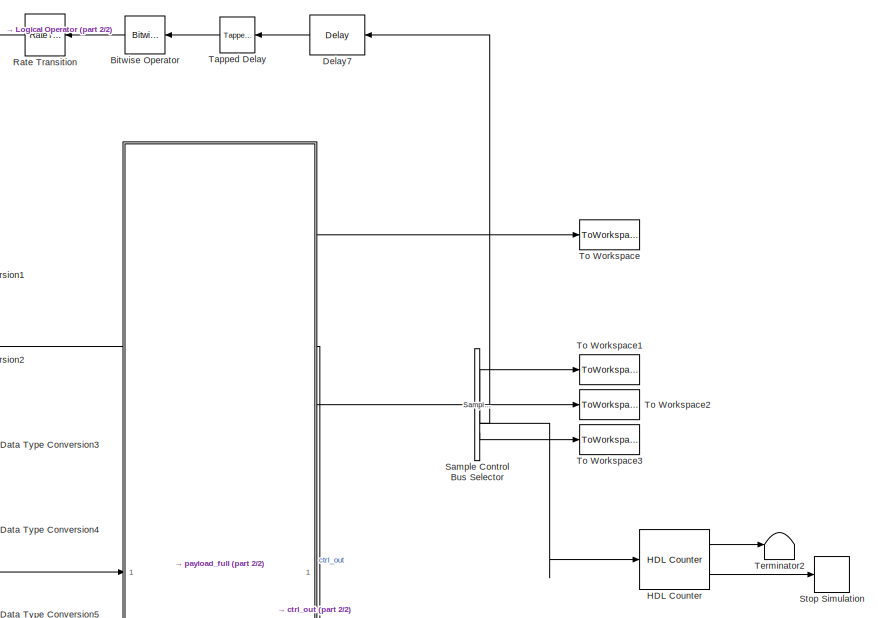
[diagram: root canvas - part 1/2, top right region]
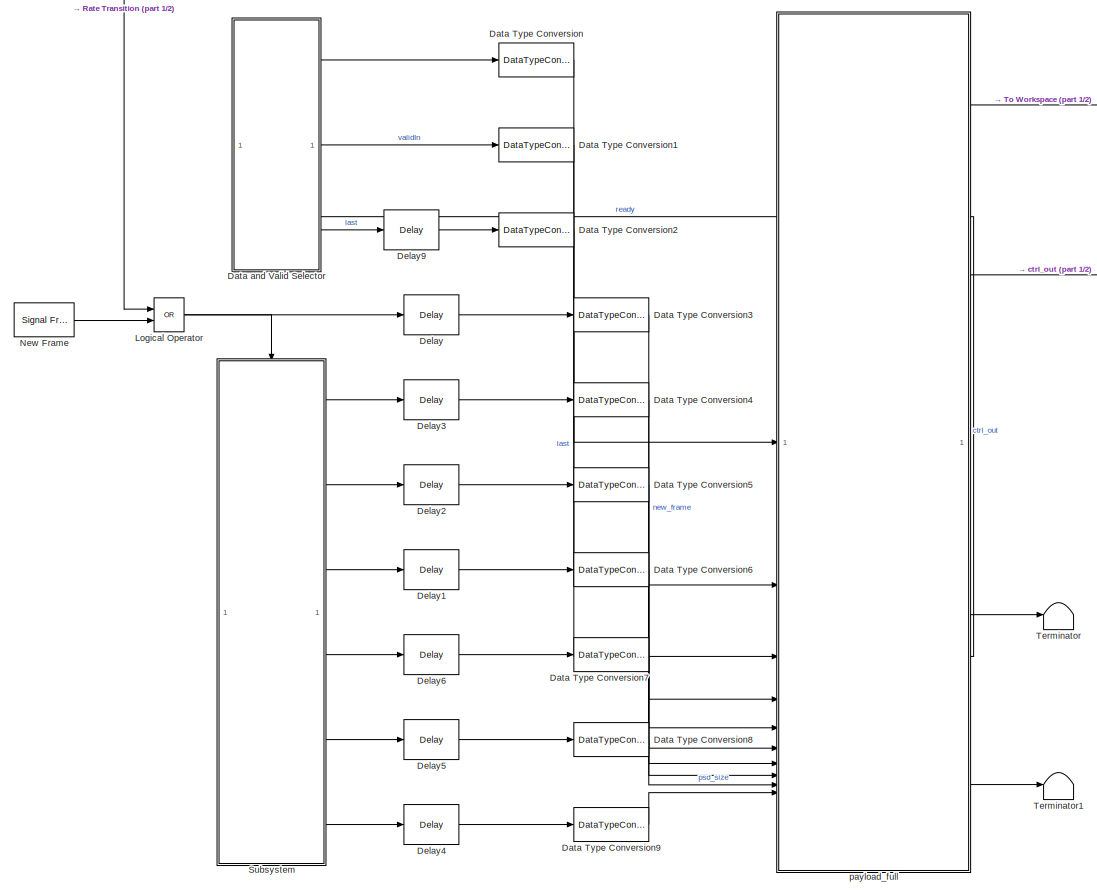
[diagram: root canvas - part 2/2, center side, full height]
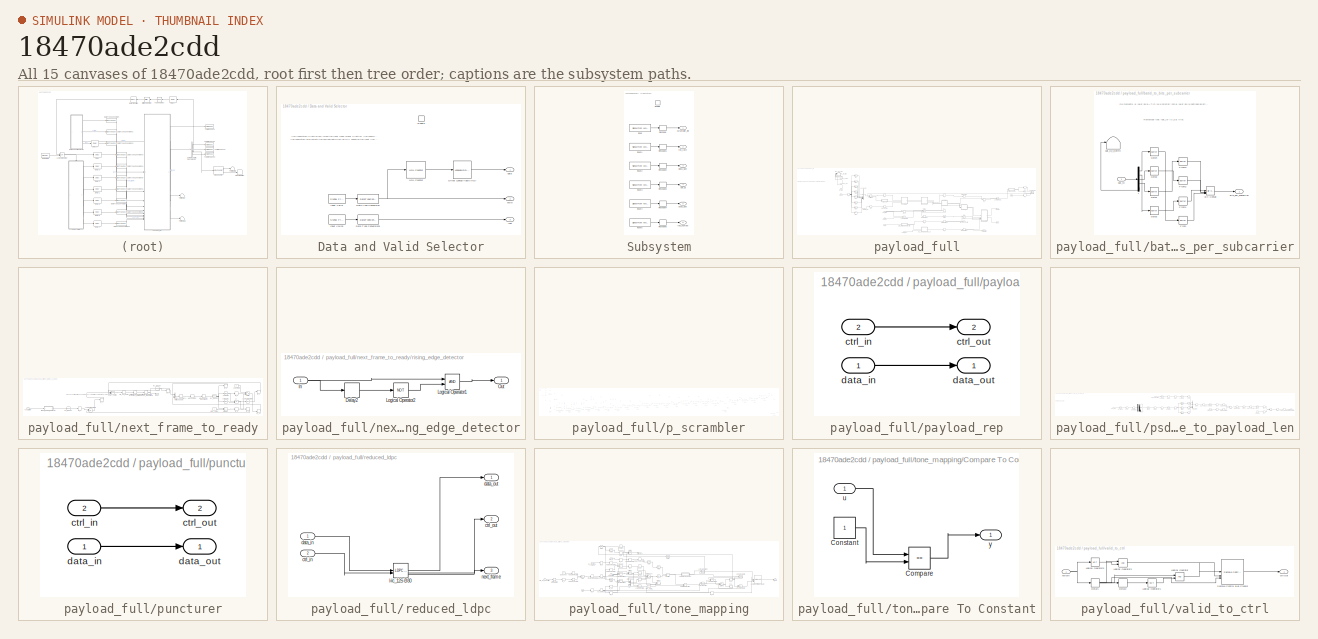
[diagram: thumbnail index - all 15 canvases of the model, root first then tree order]
MODEL slx_18470ade2cdd
KIND model
CONFIG AbsTol = auto
CONFIG EnableMultiTasking = off
CONFIG FixedStep = auto
CONFIG MaxStep = auto
CONFIG MinStep = auto
CONFIG RelTol = 1e-3
CONFIG SampleTimeConstraint = Unconstrained
CONFIG SolverName = VariableStepAuto
CONFIG StartTime = 0.0
CONFIG StopTime = 10.0
BLOCK [Reference] Bitwise Operator  REF=simulink/Logic and Bit
Operations/Bitwise
Operator
  LibrarySourceBlock = hdlsllib/Logic and Bit\nOperations/Bitwise\nOperator
  NameLocation = top
  SourceBlock = simulink/Logic and Bit\nOperations/Bitwise\nOperator
  SourceType = Bitwise Operator
BLOCK [DataTypeConversion] Data Type Conversion
  OutDataTypeStr = uint8
  RndMeth = Floor
  SaturateOnIntegerOverflow = off
BLOCK [DataTypeConversion] Data Type Conversion1
  OutDataTypeStr = boolean
  RndMeth = Floor
  SaturateOnIntegerOverflow = off
BLOCK [DataTypeConversion] Data Type Conversion2
  OutDataTypeStr = boolean
  RndMeth = Floor
  SaturateOnIntegerOverflow = off
BLOCK [DataTypeConversion] Data Type Conversion3
  OutDataTypeStr = boolean
  RndMeth = Floor
  SaturateOnIntegerOverflow = off
BLOCK [DataTypeConversion] Data Type Conversion4
  OutDataTypeStr = boolean
  RndMeth = Floor
  SaturateOnIntegerOverflow = off
BLOCK [DataTypeConversion] Data Type Conversion5
  OutDataTypeStr = boolean
  RndMeth = Floor
  SaturateOnIntegerOverflow = off
BLOCK [DataTypeConversion] Data Type Conversion6
  OutDataTypeStr = boolean
  RndMeth = Floor
  SaturateOnIntegerOverflow = off
BLOCK [DataTypeConversion] Data Type Conversion7
  OutDataTypeStr = boolean
  RndMeth = Floor
  SaturateOnIntegerOverflow = off
BLOCK [DataTypeConversion] Data Type Conversion8
  OutDataTypeStr = boolean
  RndMeth = Floor
  SaturateOnIntegerOverflow = off
BLOCK [DataTypeConversion] Data Type Conversion9
  OutDataTypeStr = boolean
  RndMeth = Floor
  SaturateOnIntegerOverflow = off
BLOCK [SubSystem] Data and Valid Selector
  TreatAsAtomicUnit = on
BLOCK [DataTypeConversion] Data and Valid Selector/Data Type Conversion
  OutDataTypeStr = boolean
  RndMeth = Floor
  SaturateOnIntegerOverflow = off
BLOCK [DataTypeConversion] Data and Valid Selector/Data Type Conversion1
  OutDataTypeStr = boolean
  RndMeth = Floor
  SaturateOnIntegerOverflow = off
BLOCK [LookupNDDirect] Data and Valid Selector/Direct Lookup Table (n-D)
  DiagnosticForOutOfRangeInput = Error
  NumberOfTableDimensions = 1
  Table = uint8(pWords')
  TableDataTypeStr = uint8
BLOCK [EnablePort] Data and Valid Selector/Enable
BLOCK [Reference] Data and Valid Selector/HDL Counter  REF=hdlsllib/Sources/HDL Counter
  SourceBlock = hdlsllib/Sources/HDL Counter
  SourceType = HDL Counter
BLOCK [Reference] Data and Valid Selector/Input Valid  REF=dspsrcs4/Signal From
Workspace
  SourceBlock = dspsrcs4/Signal From\nWorkspace
  SourceType = Signal From Workspace
BLOCK [Reference] Data and Valid Selector/Input Valid1  REF=dspsrcs4/Signal From
Workspace
  SourceBlock = dspsrcs4/Signal From\nWorkspace
  SourceType = Signal From Workspace
BLOCK [Outport] Data and Valid Selector/data
  InitialOutput = 0
  VectorParamsAs1DForOutWhenUnconnected = off
BLOCK [Outport] Data and Valid Selector/last
  Port = 3
  VectorParamsAs1DForOutWhenUnconnected = off
BLOCK [Outport] Data and Valid Selector/valid
  InitialOutput = 0
  Port = 2
  VectorParamsAs1DForOutWhenUnconnected = off
BLOCK [Delay] Delay
  DelayLength = 1
  InitialCondition = 0
  InputPortMap = u0
  UseCircularBuffer = on
  UserDataPersistent = on
BLOCK [Delay] Delay1
  DelayLength = 1
  InitialCondition = 0
  InputPortMap = u0
  UseCircularBuffer = on
  UserDataPersistent = on
BLOCK [Delay] Delay2
  DelayLength = 1
  InitialCondition = 0
  InputPortMap = u0
  UseCircularBuffer = on
  UserDataPersistent = on
BLOCK [Delay] Delay3
  DelayLength = 1
  InitialCondition = 0
  InputPortMap = u0
  UseCircularBuffer = on
  UserDataPersistent = on
BLOCK [Delay] Delay4
  DelayLength = 1
  InitialCondition = 0
  InputPortMap = u0
  UseCircularBuffer = on
  UserDataPersistent = on
BLOCK [Delay] Delay5
  DelayLength = 1
  InitialCondition = 0
  InputPortMap = u0
  UseCircularBuffer = on
  UserDataPersistent = on
BLOCK [Delay] Delay6
  DelayLength = 1
  InitialCondition = 0
  InputPortMap = u0
  UseCircularBuffer = on
  UserDataPersistent = on
BLOCK [Delay] Delay7
  DelayLength = 100
  InitialCondition = 0
  InputPortMap = u0
  NameLocation = top
  UseCircularBuffer = on
  UserDataPersistent = on
BLOCK [Delay] Delay9
  DelayLength = 1
  InitialCondition = 0
  InputPortMap = u0
  UseCircularBuffer = on
  UserDataPersistent = on
BLOCK [Reference] HDL Counter  REF=hdlsllib/Sources/HDL Counter
  SourceBlock = hdlsllib/Sources/HDL Counter
  SourceType = HDL Counter
BLOCK [Logic] Logical Operator
  AllPortsSameDT = off
  IconShape = distinctive
  Operator = OR
  OutDataTypeStr = boolean
BLOCK [Reference] New Frame  REF=dspsrcs4/Signal From
Workspace
  SourceBlock = dspsrcs4/Signal From\nWorkspace
  SourceType = Signal From Workspace
BLOCK [RateTransition] Rate Transition
  NameLocation = top
  OutPortSampleTimeMultiple = 8
  OutPortSampleTimeOpt = Multiple of input port sample time
BLOCK [Reference] Sample Control Bus Selector  REF=whdlutilities/Sample Control
Bus Selector
  SourceBlock = whdlutilities/Sample Control\nBus Selector
BLOCK [Stop] Stop Simulation
BLOCK [SubSystem] Subsystem
BLOCK [EnablePort] Subsystem/Enable
BLOCK [Reshape] Subsystem/Reshape
BLOCK [Reshape] Subsystem/Reshape1
BLOCK [Reshape] Subsystem/Reshape2
BLOCK [Reshape] Subsystem/Reshape3
BLOCK [Reshape] Subsystem/Reshape4
BLOCK [Reshape] Subsystem/Reshape5
BLOCK [Outport] Subsystem/bat_id
  Port = 4
BLOCK [Outport] Subsystem/block_size
  Port = 3
BLOCK [Outport] Subsystem/fec_rate
  Port = 2
BLOCK [Reference] Subsystem/input  REF=dspsrcs4/Signal From
Workspace
  SourceBlock = dspsrcs4/Signal From\nWorkspace
  SourceType = Signal From Workspace
BLOCK [Reference] Subsystem/input1  REF=dspsrcs4/Signal From
Workspace
  SourceBlock = dspsrcs4/Signal From\nWorkspace
  SourceType = Signal From Workspace
BLOCK [Reference] Subsystem/input2  REF=dspsrcs4/Signal From
Workspace
  SourceBlock = dspsrcs4/Signal From\nWorkspace
  SourceType = Signal From Workspace
BLOCK [Reference] Subsystem/input3  REF=dspsrcs4/Signal From
Workspace
  SourceBlock = dspsrcs4/Signal From\nWorkspace
  SourceType = Signal From Workspace
BLOCK [Reference] Subsystem/input4  REF=dspsrcs4/Signal From
Workspace
  SourceBlock = dspsrcs4/Signal From\nWorkspace
  SourceType = Signal From Workspace
BLOCK [Reference] Subsystem/input5  REF=dspsrcs4/Signal From
Workspace
  SourceBlock = dspsrcs4/Signal From\nWorkspace
  SourceType = Signal From Workspace
BLOCK [Outport] Subsystem/psdu_size
  Port = 5
BLOCK [Outport] Subsystem/rep_number
  Port = 6
BLOCK [Outport] Subsystem/scrambler_init
BLOCK [Reference] Tapped Delay  REF=simulink/Discrete/Tapped Delay
  LibrarySourceBlock = hdlsllib/Discrete/Tapped Delay
  NameLocation = top
  SourceBlock = simulink/Discrete/Tapped Delay
  SourceType = Tapped Delay Line
BLOCK [Terminator] Terminator
BLOCK [Terminator] Terminator1
BLOCK [Terminator] Terminator2
BLOCK [ToWorkspace] To Workspace
  MaxDataPoints = inf
  SampleTime = 1/fs
  Save2DSignal = 2-D array (concatenate along first dimension)
  VariableName = dataOut
BLOCK [ToWorkspace] To Workspace1
  MaxDataPoints = inf
  SampleTime = 1/fs
  Save2DSignal = 2-D array (concatenate along first dimension)
  VariableName = startOut
BLOCK [ToWorkspace] To Workspace2
  MaxDataPoints = inf
  SampleTime = 1/fs
  Save2DSignal = 2-D array (concatenate along first dimension)
  VariableName = endOut
BLOCK [ToWorkspace] To Workspace3
  MaxDataPoints = inf
  SampleTime = 1/fs
  Save2DSignal = 2-D array (concatenate along first dimension)
  VariableName = validOut
BLOCK [SubSystem] payload_full
  TreatAsAtomicUnit = on
BLOCK [Reference] payload_full/From  REF=hdlmdlgenlib/Buffer
  SourceBlock = hdlmdlgenlib/Buffer
  SourceType = Buffer/Wire
BLOCK [Reference] payload_full/Goto  REF=hdlmdlgenlib/Buffer
  SourceBlock = hdlmdlgenlib/Buffer
  SourceType = Buffer/Wire
BLOCK [Logic] payload_full/Logical Operator
  AllPortsSameDT = off
  OutDataTypeStr = boolean
  SampleTime = 8e-08
BLOCK [Logic] payload_full/Logical Operator1
  AllPortsSameDT = off
  OutDataTypeStr = boolean
  SampleTime = 8e-08
BLOCK [Logic] payload_full/Logical Operator5
  AllPortsSameDT = off
  Operator = OR
  OutDataTypeStr = boolean
  SampleTime = 8e-08
BLOCK [RateTransition] payload_full/Rate Transition
  InitialCondition = double(0)
  OutPortSampleTimeMultiple = 8
  OutPortSampleTimeOpt = Multiple of input port sample time
BLOCK [RateTransition] payload_full/Rate Transition1
  Deterministic = off
  Integrity = off
  OutPortSampleTimeMultiple = 1/8
  OutPortSampleTimeOpt = Multiple of input port sample time
BLOCK [RateTransition] payload_full/Rate Transition4
  Deterministic = off
  InitialCondition = fi(0,0,4,0,"hex","0")
  Integrity = off
  OutPortSampleTimeMultiple = 1/8
  OutPortSampleTimeOpt = Multiple of input port sample time
BLOCK [RateTransition] payload_full/Rate Transition5
  Deterministic = off
  Integrity = off
  OutPortSampleTimeMultiple = 1/8
  OutPortSampleTimeOpt = Multiple of input port sample time
BLOCK [RateTransition] payload_full/Rate Transition6
  Deterministic = off
  Integrity = off
  OutPortSampleTimeMultiple = 1/8
  OutPortSampleTimeOpt = Multiple of input port sample time
BLOCK [Reference] payload_full/Serializer1D  REF=hdlsllib/HDL Operations/Serializer1D
  SourceBlock = hdlsllib/HDL Operations/Serializer1D
  SourceType = Serializer1D
BLOCK [Switch] payload_full/Switch1
  Criteria = u2 ~= 0
  InputSameDT = off
  OutDataTypeStr = boolean
  SampleTime = 8e-08
  SaturateOnIntegerOverflow = off
  Threshold = double(0)
BLOCK [Inport] payload_full/bat_id
  OutDataTypeStr = boolean
  Port = 8
  PortDimensions = [5]
  SampleTime = 8e-08
BLOCK [SubSystem] payload_full/batid_to_bits_per_subcarrier
BLOCK [Reference] payload_full/batid_to_bits_per_subcarrier/Bit Concat  REF=hdlsllib/Logic and Bit
Operations/Bit Concat
  SourceBlock = hdlsllib/Logic and Bit\nOperations/Bit Concat
  SourceType = Bit Concat
BLOCK [Reference] payload_full/batid_to_bits_per_subcarrier/From  REF=hdlmdlgenlib/Buffer
  SourceBlock = hdlmdlgenlib/Buffer
  SourceType = Buffer/Wire
BLOCK [Reference] payload_full/batid_to_bits_per_subcarrier/From1  REF=hdlmdlgenlib/Buffer
  SourceBlock = hdlmdlgenlib/Buffer
  SourceType = Buffer/Wire
BLOCK [Reference] payload_full/batid_to_bits_per_subcarrier/From2  REF=hdlmdlgenlib/Buffer
  SourceBlock = hdlmdlgenlib/Buffer
  SourceType = Buffer/Wire
BLOCK [Reference] payload_full/batid_to_bits_per_subcarrier/From3  REF=hdlmdlgenlib/Buffer
  SourceBlock = hdlmdlgenlib/Buffer
  SourceType = Buffer/Wire
BLOCK [Reference] payload_full/batid_to_bits_per_subcarrier/Goto1  REF=hdlmdlgenlib/Buffer
  SourceBlock = hdlmdlgenlib/Buffer
  SourceType = Buffer/Wire
BLOCK [Reference] payload_full/batid_to_bits_per_subcarrier/Goto2  REF=hdlmdlgenlib/Buffer
  SourceBlock = hdlmdlgenlib/Buffer
  SourceType = Buffer/Wire
BLOCK [Reference] payload_full/batid_to_bits_per_subcarrier/Goto3  REF=hdlmdlgenlib/Buffer
  SourceBlock = hdlmdlgenlib/Buffer
  SourceType = Buffer/Wire
BLOCK [Reference] payload_full/batid_to_bits_per_subcarrier/Goto4  REF=hdlmdlgenlib/Buffer
  SourceBlock = hdlmdlgenlib/Buffer
  SourceType = Buffer/Wire
BLOCK [Inport] payload_full/batid_to_bits_per_subcarrier/bat_id
  OutDataTypeStr = boolean
  PortDimensions = [5]
  SampleTime = 8e-08
BLOCK [Terminator] payload_full/batid_to_bits_per_subcarrier/bat_id_4_term4
BLOCK [Outport] payload_full/batid_to_bits_per_subcarrier/bits_per_subcarrier
  SampleTime = 8e-08
BLOCK [Demux] payload_full/batid_to_bits_per_subcarrier/t
  Outputs = 5
BLOCK [Outport] payload_full/bits_per_subcarrier
  Port = 5
  SampleTime = 1e-08
  VectorParamsAs1DForOutWhenUnconnected = off
BLOCK [Inport] payload_full/block_size
  OutDataTypeStr = boolean
  Port = 7
  PortDimensions = [2]
  SampleTime = 8e-08
BLOCK [Terminator] payload_full/block_size_term6
BLOCK [Concatenate] payload_full/concatenate
  ConcatenateDimension = 2
  Mode = Multidimensional array
  NumInputs = 8
BLOCK [Outport] payload_full/ctrl_out
  Port = 2
  VectorParamsAs1DForOutWhenUnconnected = off
BLOCK [Inport] payload_full/data_in
  OutDataTypeStr = uint8
  PortDimensions = 1
  SampleTime = 8e-08
BLOCK [Inport] payload_full/fec_rate
  OutDataTypeStr = boolean
  Port = 6
  PortDimensions = [3]
  SampleTime = 8e-08
BLOCK [Terminator] payload_full/fec_rate_term5
BLOCK [Inport] payload_full/last_frame
  OutDataTypeStr = boolean
  Port = 3
  PortDimensions = 1
  SampleTime = 8e-08
BLOCK [Outport] payload_full/len_in_ofdm_symbols
  Port = 4
  SampleTime = 1e-08
  VectorParamsAs1DForOutWhenUnconnected = off
BLOCK [Inport] payload_full/new_frame
  OutDataTypeStr = boolean
  Port = 4
  PortDimensions = 1
  SampleTime = 8e-08
BLOCK [SubSystem] payload_full/next_frame_to_ready
BLOCK [Switch] payload_full/next_frame_to_ready/Delay_Switch
  Criteria = u2 ~= 0
  InputSameDT = off
  OutDataTypeStr = boolean
  SampleTime = 1e-08
  SaturateOnIntegerOverflow = off
  Threshold = double(0)
BLOCK [RateTransition] payload_full/next_frame_to_ready/HDL Counter
  OutPortSampleTimeMultiple = 8
  OutPortSampleTimeOpt = Multiple of input port sample time
BLOCK [Delay] payload_full/next_frame_to_ready/HDL Counter_absorbed
  DelayLength = 0
  InputPortMap = u0
BLOCK [Logic] payload_full/next_frame_to_ready/Logical Operator2
  AllPortsSameDT = off
  Inputs = 1
  Operator = NOT
  OutDataTypeStr = boolean
  SampleTime = 1e-08
BLOCK [Logic] payload_full/next_frame_to_ready/Logical Operator3
  AllPortsSameDT = off
  Operator = OR
  OutDataTypeStr = boolean
  SampleTime = 1e-08
BLOCK [RateTransition] payload_full/next_frame_to_ready/Unit Delay Enabled Synchronous_lowered
  OutPortSampleTimeMultiple = 8
  OutPortSampleTimeOpt = Multiple of input port sample time
BLOCK [Delay] payload_full/next_frame_to_ready/Unit Delay Enabled Synchronous_lowered_absorbed
  DelayLength = 0
  InputPortMap = u0
BLOCK [Sum] payload_full/next_frame_to_ready/adder
  AccumDataTypeStr = fixdt(0, 7, 0)
  IconShape = rectangular
  OutDataTypeStr = fixdt(0, 7, 0)
  SampleTime = 1e-08
BLOCK [Reference] payload_full/next_frame_to_ready/compare  REF=simulink/Logic and Bit
Operations/Compare
To Constant
  SourceBlock = simulink/Logic and Bit\nOperations/Compare\nTo Constant
  SourceType = Compare To Constant
BLOCK [Reference] payload_full/next_frame_to_ready/compare1  REF=simulink/Logic and Bit
Operations/Compare
To Constant
  SourceBlock = simulink/Logic and Bit\nOperations/Compare\nTo Constant
  SourceType = Compare To Constant
BLOCK [Constant] payload_full/next_frame_to_ready/countFrom
  OutDataTypeStr = fixdt(0, 7, 0)
  SampleTime = 1e-08
  Value = 0
  VectorParams1D = off
BLOCK [Delay] payload_full/next_frame_to_ready/crp_out_delay
  DelayLength = double(1)
  InitialCondition = 0
  InputPortMap = u0
  SampleTime = 1e-08
BLOCK [Delay] payload_full/next_frame_to_ready/crp_out_delay1
  DelayLength = double(1)
  InitialCondition = 0
  InputPortMap = u0
  SampleTime = 1e-08
BLOCK [Reference] payload_full/next_frame_to_ready/in0_repeat  REF=dspsigops/Repeat
  SourceBlock = dspsigops/Repeat
  SourceType = Repeat
  UserDataPersistent = on
BLOCK [Reference] payload_full/next_frame_to_ready/in1_repeat  REF=dspsigops/Repeat
  SourceBlock = dspsigops/Repeat
  SourceType = Repeat
  UserDataPersistent = on
BLOCK [Reference] payload_full/next_frame_to_ready/in2_repeat  REF=dspsigops/Repeat
  SourceBlock = dspsigops/Repeat
  SourceType = Repeat
  UserDataPersistent = on
BLOCK [Inport] payload_full/next_frame_to_ready/next_frame
  OutDataTypeStr = boolean
  SampleTime = 8e-08
BLOCK [Logic] payload_full/next_frame_to_ready/or
  AllPortsSameDT = off
  Operator = OR
  OutDataTypeStr = boolean
  SampleTime = 1e-08
BLOCK [Delay] payload_full/next_frame_to_ready/rd_0
  DelayLength = double(1)
  InitialCondition = 0
  InputPortMap = u0
  SampleTime = 1e-08
BLOCK [Delay] payload_full/next_frame_to_ready/rd_1
  DelayLength = double(2)
  InitialCondition = 0
  InputPortMap = u0
  SampleTime = 1e-08
BLOCK [Delay] payload_full/next_frame_to_ready/rd_10
  DelayLength = double(1)
  InitialCondition = 0
  InputPortMap = u0
  SampleTime = 1e-08
BLOCK [Delay] payload_full/next_frame_to_ready/rd_2
  DelayLength = double(1)
  InitialCondition = 0
  InputPortMap = u0
  SampleTime = 1e-08
BLOCK [Delay] payload_full/next_frame_to_ready/rd_3
  DelayLength = double(1)
  InitialCondition = 0
  InputPortMap = u0
  SampleTime = 1e-08
BLOCK [Delay] payload_full/next_frame_to_ready/rd_4
  DelayLength = double(2)
  InitialCondition = 0
  InputPortMap = u0
  SampleTime = 1e-08
BLOCK [Delay] payload_full/next_frame_to_ready/rd_6
  DelayLength = double(2)
  InitialCondition = 0
  InputPortMap = u0
  SampleTime = 1e-08
BLOCK [Delay] payload_full/next_frame_to_ready/rd_8
  DelayLength = double(1)
  InitialCondition = 0
  InputPortMap = u0
  SampleTime = 1e-08
BLOCK [Delay] payload_full/next_frame_to_ready/rd_9
  DelayLength = double(1)
  InitialCondition = 0
  InputPortMap = u0
  SampleTime = 1e-08
BLOCK [Outport] payload_full/next_frame_to_ready/ready
  SampleTime = 8e-08
BLOCK [SubSystem] payload_full/next_frame_to_ready/rising_edge_detector
BLOCK [Delay] payload_full/next_frame_to_ready/rising_edge_detector/Delay2
  DelayLength = double(1)
  InitialCondition = 0
  InputPortMap = u0
  SampleTime = 8e-08
BLOCK [Inport] payload_full/next_frame_to_ready/rising_edge_detector/In
  OutDataTypeStr = boolean
  SampleTime = 8e-08
BLOCK [Logic] payload_full/next_frame_to_ready/rising_edge_detector/Logical Operator1
  AllPortsSameDT = off
  OutDataTypeStr = boolean
  SampleTime = 8e-08
BLOCK [Logic] payload_full/next_frame_to_ready/rising_edge_detector/Logical Operator2
  AllPortsSameDT = off
  Inputs = 1
  Operator = NOT
  OutDataTypeStr = boolean
  SampleTime = 8e-08
BLOCK [Outport] payload_full/next_frame_to_ready/rising_edge_detector/Out
  SampleTime = 8e-08
BLOCK [Constant] payload_full/next_frame_to_ready/step_value
  OutDataTypeStr = fixdt(0, 7, 0)
  SampleTime = 1e-08
  VectorParams1D = off
BLOCK [Switch] payload_full/next_frame_to_ready/switch
  Criteria = u2 ~= 0
  InputSameDT = off
  OutDataTypeStr = fixdt(0, 7, 0)
  SampleTime = 1e-08
  SaturateOnIntegerOverflow = off
  Threshold = double(0)
BLOCK [MultiPortSwitch] payload_full/next_frame_to_ready/switchEnable
  DataPortOrder = Zero-based contiguous
  DiagnosticForDefault = None
  InputSameDT = off
  Inputs = 2
  OutDataTypeStr = fixdt(0, 7, 0)
  SampleTime = 1e-08
  SaturateOnIntegerOverflow = off
  zeroidx = on
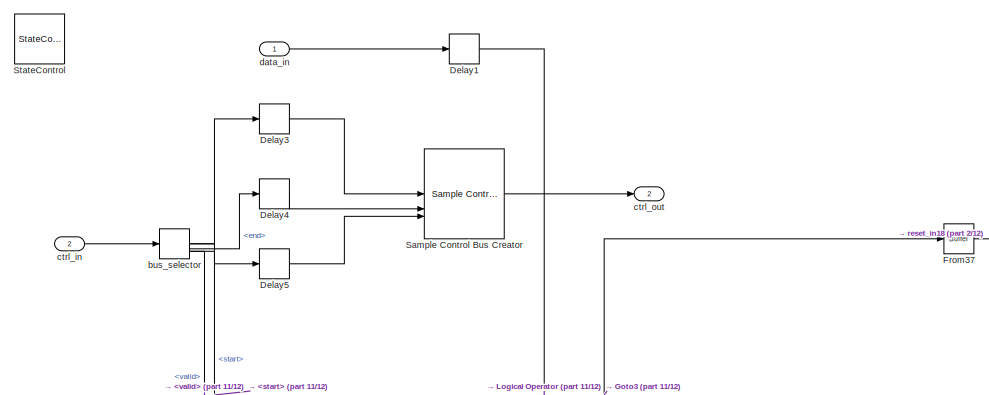
[diagram: payload_full/p_scrambler - part 1/12, top left region]
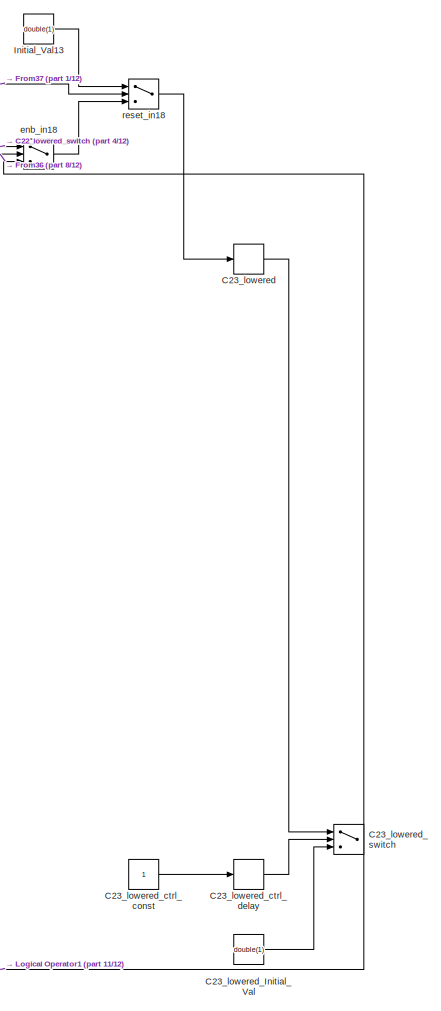
[diagram: payload_full/p_scrambler - part 2/12, right side, full height]
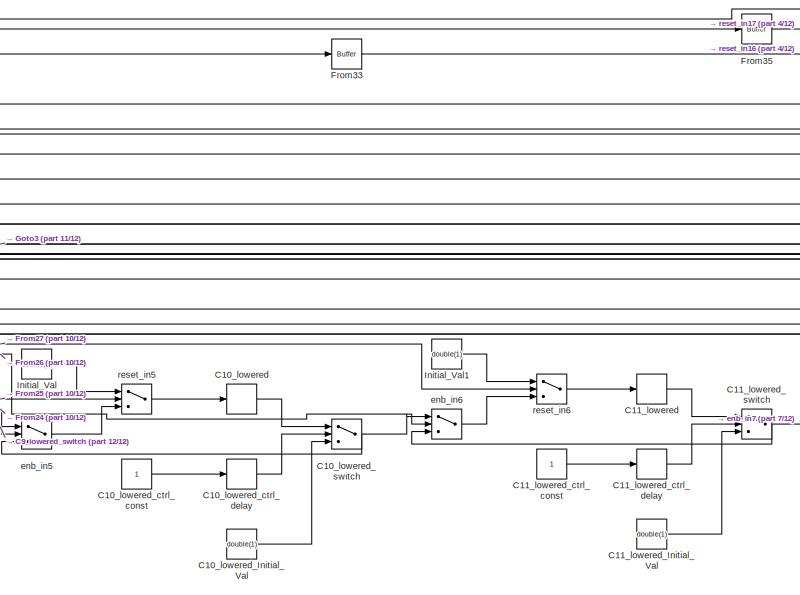
[diagram: payload_full/p_scrambler - part 3/12, central region]
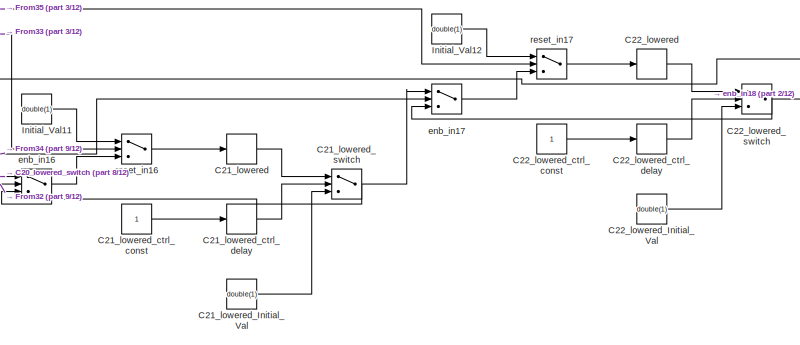
[diagram: payload_full/p_scrambler - part 4/12, middle right region]
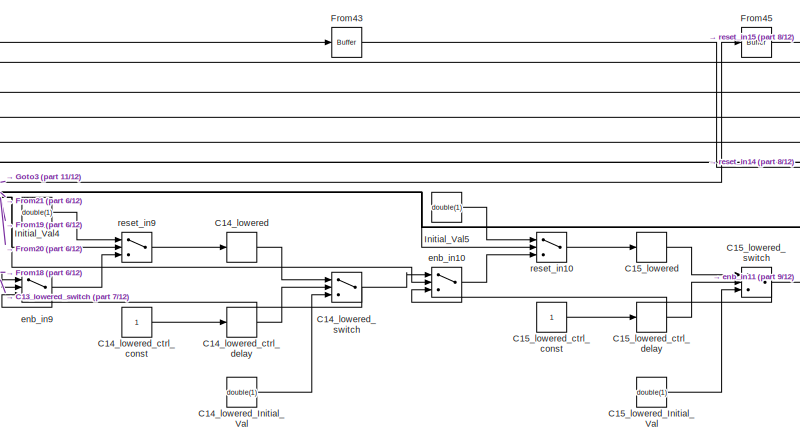
[diagram: payload_full/p_scrambler - part 5/12, central region]
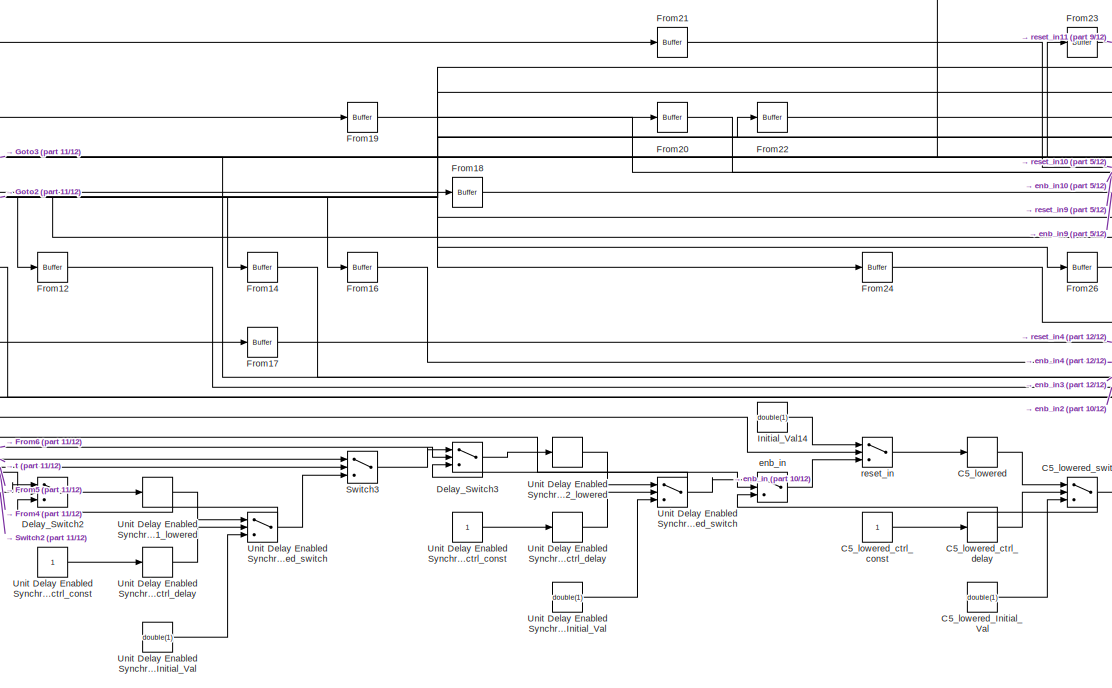
[diagram: payload_full/p_scrambler - part 6/12, middle left region]
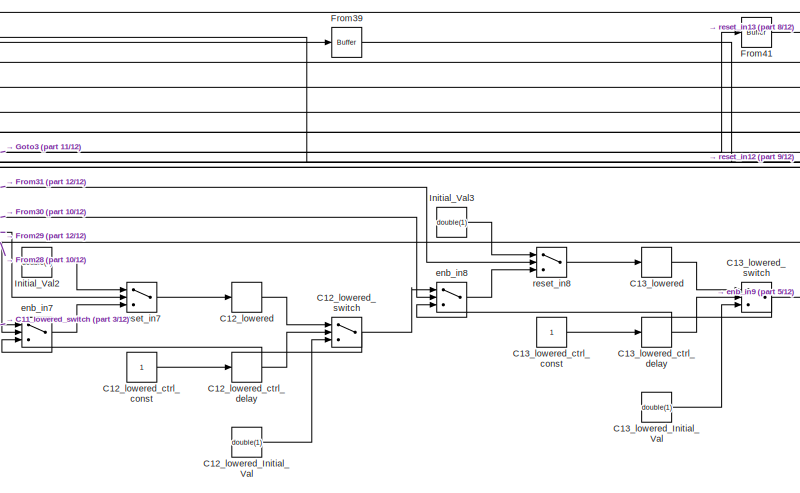
[diagram: payload_full/p_scrambler - part 7/12, central region]
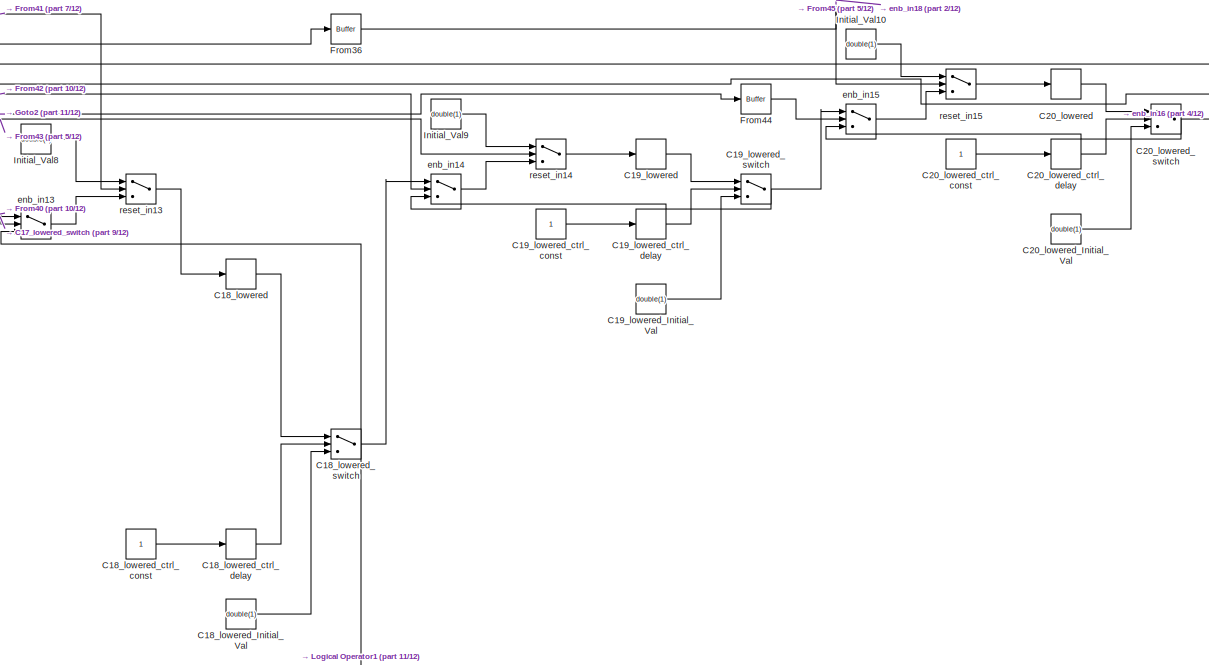
[diagram: payload_full/p_scrambler - part 8/12, middle right region]
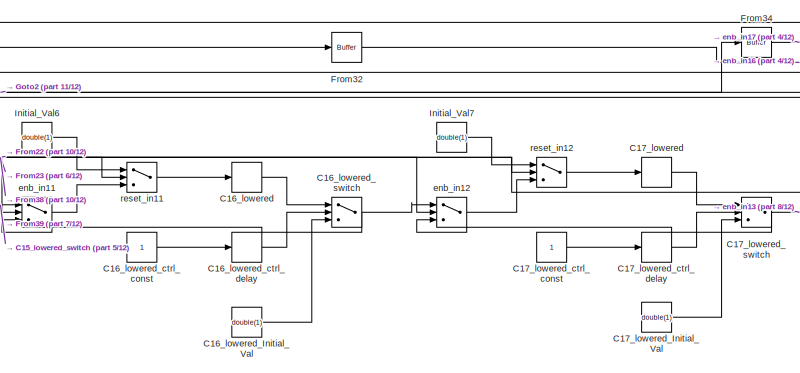
[diagram: payload_full/p_scrambler - part 9/12, middle right region]
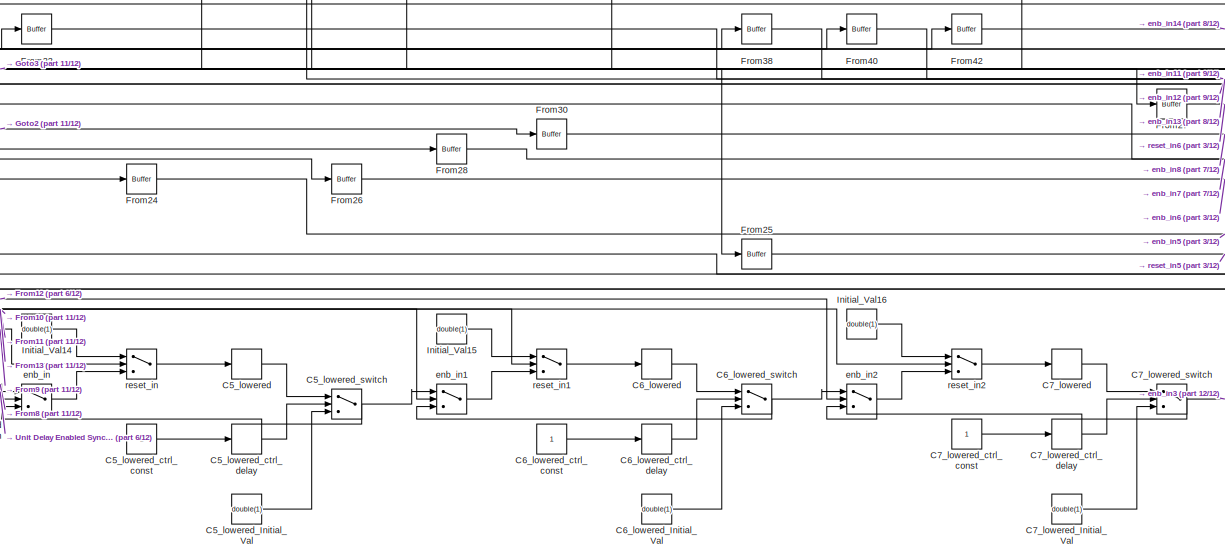
[diagram: payload_full/p_scrambler - part 10/12, middle left region]
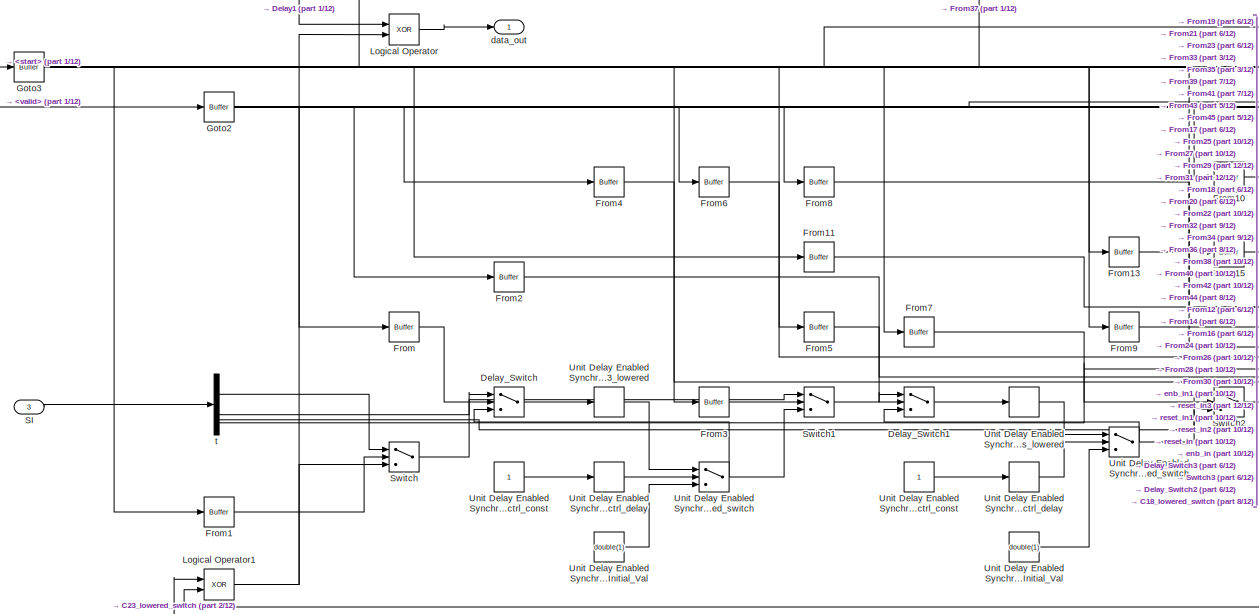
[diagram: payload_full/p_scrambler - part 11/12, middle left region]
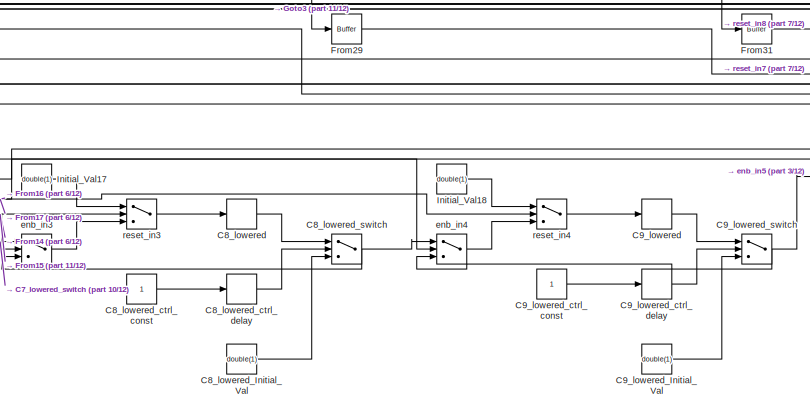
[diagram: payload_full/p_scrambler - part 12/12, central region]
BLOCK [SubSystem] payload_full/p_scrambler
BLOCK [Delay] payload_full/p_scrambler/C10_lowered
  DelayLength = double(1)
  InitialCondition = 0
  InputPortMap = u0
  SampleTime = 1e-08
BLOCK [Constant] payload_full/p_scrambler/C10_lowered_Initial_Val
  OutDataTypeStr = boolean
  SampleTime = 1e-08
  Value = double(1)
BLOCK [Constant] payload_full/p_scrambler/C10_lowered_ctrl_const
  OutDataTypeStr = boolean
  SampleTime = 1e-08
BLOCK [Delay] payload_full/p_scrambler/C10_lowered_ctrl_delay
  DelayLength = double(1)
  InitialCondition = 0
  InputPortMap = u0
  SampleTime = 1e-08
BLOCK [Switch] payload_full/p_scrambler/C10_lowered_switch
  Criteria = u2 ~= 0
  InputSameDT = off
  OutDataTypeStr = boolean
  SampleTime = 1e-08
  SaturateOnIntegerOverflow = off
  Threshold = double(0)
BLOCK [Delay] payload_full/p_scrambler/C11_lowered
  DelayLength = double(1)
  InitialCondition = 0
  InputPortMap = u0
  SampleTime = 1e-08
BLOCK [Constant] payload_full/p_scrambler/C11_lowered_Initial_Val
  OutDataTypeStr = boolean
  SampleTime = 1e-08
  Value = double(1)
BLOCK [Constant] payload_full/p_scrambler/C11_lowered_ctrl_const
  OutDataTypeStr = boolean
  SampleTime = 1e-08
BLOCK [Delay] payload_full/p_scrambler/C11_lowered_ctrl_delay
  DelayLength = double(1)
  InitialCondition = 0
  InputPortMap = u0
  SampleTime = 1e-08
BLOCK [Switch] payload_full/p_scrambler/C11_lowered_switch
  Criteria = u2 ~= 0
  InputSameDT = off
  OutDataTypeStr = boolean
  SampleTime = 1e-08
  SaturateOnIntegerOverflow = off
  Threshold = double(0)
BLOCK [Delay] payload_full/p_scrambler/C12_lowered
  DelayLength = double(1)
  InitialCondition = 0
  InputPortMap = u0
  SampleTime = 1e-08
BLOCK [Constant] payload_full/p_scrambler/C12_lowered_Initial_Val
  OutDataTypeStr = boolean
  SampleTime = 1e-08
  Value = double(1)
BLOCK [Constant] payload_full/p_scrambler/C12_lowered_ctrl_const
  OutDataTypeStr = boolean
  SampleTime = 1e-08
BLOCK [Delay] payload_full/p_scrambler/C12_lowered_ctrl_delay
  DelayLength = double(1)
  InitialCondition = 0
  InputPortMap = u0
  SampleTime = 1e-08
BLOCK [Switch] payload_full/p_scrambler/C12_lowered_switch
  Criteria = u2 ~= 0
  InputSameDT = off
  OutDataTypeStr = boolean
  SampleTime = 1e-08
  SaturateOnIntegerOverflow = off
  Threshold = double(0)
BLOCK [Delay] payload_full/p_scrambler/C13_lowered
  DelayLength = double(1)
  InitialCondition = 0
  InputPortMap = u0
  SampleTime = 1e-08
BLOCK [Constant] payload_full/p_scrambler/C13_lowered_Initial_Val
  OutDataTypeStr = boolean
  SampleTime = 1e-08
  Value = double(1)
BLOCK [Constant] payload_full/p_scrambler/C13_lowered_ctrl_const
  OutDataTypeStr = boolean
  SampleTime = 1e-08
BLOCK [Delay] payload_full/p_scrambler/C13_lowered_ctrl_delay
  DelayLength = double(1)
  InitialCondition = 0
  InputPortMap = u0
  SampleTime = 1e-08
BLOCK [Switch] payload_full/p_scrambler/C13_lowered_switch
  Criteria = u2 ~= 0
  InputSameDT = off
  OutDataTypeStr = boolean
  SampleTime = 1e-08
  SaturateOnIntegerOverflow = off
  Threshold = double(0)
BLOCK [Delay] payload_full/p_scrambler/C14_lowered
  DelayLength = double(1)
  InitialCondition = 0
  InputPortMap = u0
  SampleTime = 1e-08
BLOCK [Constant] payload_full/p_scrambler/C14_lowered_Initial_Val
  OutDataTypeStr = boolean
  SampleTime = 1e-08
  Value = double(1)
BLOCK [Constant] payload_full/p_scrambler/C14_lowered_ctrl_const
  OutDataTypeStr = boolean
  SampleTime = 1e-08
BLOCK [Delay] payload_full/p_scrambler/C14_lowered_ctrl_delay
  DelayLength = double(1)
  InitialCondition = 0
  InputPortMap = u0
  SampleTime = 1e-08
BLOCK [Switch] payload_full/p_scrambler/C14_lowered_switch
  Criteria = u2 ~= 0
  InputSameDT = off
  OutDataTypeStr = boolean
  SampleTime = 1e-08
  SaturateOnIntegerOverflow = off
  Threshold = double(0)
BLOCK [Delay] payload_full/p_scrambler/C15_lowered
  DelayLength = double(1)
  InitialCondition = 0
  InputPortMap = u0
  SampleTime = 1e-08
BLOCK [Constant] payload_full/p_scrambler/C15_lowered_Initial_Val
  OutDataTypeStr = boolean
  SampleTime = 1e-08
  Value = double(1)
BLOCK [Constant] payload_full/p_scrambler/C15_lowered_ctrl_const
  OutDataTypeStr = boolean
  SampleTime = 1e-08
BLOCK [Delay] payload_full/p_scrambler/C15_lowered_ctrl_delay
  DelayLength = double(1)
  InitialCondition = 0
  InputPortMap = u0
  SampleTime = 1e-08
BLOCK [Switch] payload_full/p_scrambler/C15_lowered_switch
  Criteria = u2 ~= 0
  InputSameDT = off
  OutDataTypeStr = boolean
  SampleTime = 1e-08
  SaturateOnIntegerOverflow = off
  Threshold = double(0)
BLOCK [Delay] payload_full/p_scrambler/C16_lowered
  DelayLength = double(1)
  InitialCondition = 0
  InputPortMap = u0
  SampleTime = 1e-08
BLOCK [Constant] payload_full/p_scrambler/C16_lowered_Initial_Val
  OutDataTypeStr = boolean
  SampleTime = 1e-08
  Value = double(1)
BLOCK [Constant] payload_full/p_scrambler/C16_lowered_ctrl_const
  OutDataTypeStr = boolean
  SampleTime = 1e-08
BLOCK [Delay] payload_full/p_scrambler/C16_lowered_ctrl_delay
  DelayLength = double(1)
  InitialCondition = 0
  InputPortMap = u0
  SampleTime = 1e-08
BLOCK [Switch] payload_full/p_scrambler/C16_lowered_switch
  Criteria = u2 ~= 0
  InputSameDT = off
  OutDataTypeStr = boolean
  SampleTime = 1e-08
  SaturateOnIntegerOverflow = off
  Threshold = double(0)
BLOCK [Delay] payload_full/p_scrambler/C17_lowered
  DelayLength = double(1)
  InitialCondition = 0
  InputPortMap = u0
  SampleTime = 1e-08
BLOCK [Constant] payload_full/p_scrambler/C17_lowered_Initial_Val
  OutDataTypeStr = boolean
  SampleTime = 1e-08
  Value = double(1)
BLOCK [Constant] payload_full/p_scrambler/C17_lowered_ctrl_const
  OutDataTypeStr = boolean
  SampleTime = 1e-08
BLOCK [Delay] payload_full/p_scrambler/C17_lowered_ctrl_delay
  DelayLength = double(1)
  InitialCondition = 0
  InputPortMap = u0
  SampleTime = 1e-08
BLOCK [Switch] payload_full/p_scrambler/C17_lowered_switch
  Criteria = u2 ~= 0
  InputSameDT = off
  OutDataTypeStr = boolean
  SampleTime = 1e-08
  SaturateOnIntegerOverflow = off
  Threshold = double(0)
BLOCK [Delay] payload_full/p_scrambler/C18_lowered
  DelayLength = double(1)
  InitialCondition = 0
  InputPortMap = u0
  SampleTime = 1e-08
BLOCK [Constant] payload_full/p_scrambler/C18_lowered_Initial_Val
  OutDataTypeStr = boolean
  SampleTime = 1e-08
  Value = double(1)
BLOCK [Constant] payload_full/p_scrambler/C18_lowered_ctrl_const
  OutDataTypeStr = boolean
  SampleTime = 1e-08
BLOCK [Delay] payload_full/p_scrambler/C18_lowered_ctrl_delay
  DelayLength = double(1)
  InitialCondition = 0
  InputPortMap = u0
  SampleTime = 1e-08
BLOCK [Switch] payload_full/p_scrambler/C18_lowered_switch
  Criteria = u2 ~= 0
  InputSameDT = off
  OutDataTypeStr = boolean
  SampleTime = 1e-08
  SaturateOnIntegerOverflow = off
  Threshold = double(0)
BLOCK [Delay] payload_full/p_scrambler/C19_lowered
  DelayLength = double(1)
  InitialCondition = 0
  InputPortMap = u0
  SampleTime = 1e-08
BLOCK [Constant] payload_full/p_scrambler/C19_lowered_Initial_Val
  OutDataTypeStr = boolean
  SampleTime = 1e-08
  Value = double(1)
BLOCK [Constant] payload_full/p_scrambler/C19_lowered_ctrl_const
  OutDataTypeStr = boolean
  SampleTime = 1e-08
BLOCK [Delay] payload_full/p_scrambler/C19_lowered_ctrl_delay
  DelayLength = double(1)
  InitialCondition = 0
  InputPortMap = u0
  SampleTime = 1e-08
BLOCK [Switch] payload_full/p_scrambler/C19_lowered_switch
  Criteria = u2 ~= 0
  InputSameDT = off
  OutDataTypeStr = boolean
  SampleTime = 1e-08
  SaturateOnIntegerOverflow = off
  Threshold = double(0)
BLOCK [Delay] payload_full/p_scrambler/C20_lowered
  DelayLength = double(1)
  InitialCondition = 0
  InputPortMap = u0
  SampleTime = 1e-08
BLOCK [Constant] payload_full/p_scrambler/C20_lowered_Initial_Val
  OutDataTypeStr = boolean
  SampleTime = 1e-08
  Value = double(1)
BLOCK [Constant] payload_full/p_scrambler/C20_lowered_ctrl_const
  OutDataTypeStr = boolean
  SampleTime = 1e-08
BLOCK [Delay] payload_full/p_scrambler/C20_lowered_ctrl_delay
  DelayLength = double(1)
  InitialCondition = 0
  InputPortMap = u0
  SampleTime = 1e-08
BLOCK [Switch] payload_full/p_scrambler/C20_lowered_switch
  Criteria = u2 ~= 0
  InputSameDT = off
  OutDataTypeStr = boolean
  SampleTime = 1e-08
  SaturateOnIntegerOverflow = off
  Threshold = double(0)
BLOCK [Delay] payload_full/p_scrambler/C21_lowered
  DelayLength = double(1)
  InitialCondition = 0
  InputPortMap = u0
  SampleTime = 1e-08
BLOCK [Constant] payload_full/p_scrambler/C21_lowered_Initial_Val
  OutDataTypeStr = boolean
  SampleTime = 1e-08
  Value = double(1)
BLOCK [Constant] payload_full/p_scrambler/C21_lowered_ctrl_const
  OutDataTypeStr = boolean
  SampleTime = 1e-08
BLOCK [Delay] payload_full/p_scrambler/C21_lowered_ctrl_delay
  DelayLength = double(1)
  InitialCondition = 0
  InputPortMap = u0
  SampleTime = 1e-08
BLOCK [Switch] payload_full/p_scrambler/C21_lowered_switch
  Criteria = u2 ~= 0
  InputSameDT = off
  OutDataTypeStr = boolean
  SampleTime = 1e-08
  SaturateOnIntegerOverflow = off
  Threshold = double(0)
BLOCK [Delay] payload_full/p_scrambler/C22_lowered
  DelayLength = double(1)
  InitialCondition = 0
  InputPortMap = u0
  SampleTime = 1e-08
BLOCK [Constant] payload_full/p_scrambler/C22_lowered_Initial_Val
  OutDataTypeStr = boolean
  SampleTime = 1e-08
  Value = double(1)
BLOCK [Constant] payload_full/p_scrambler/C22_lowered_ctrl_const
  OutDataTypeStr = boolean
  SampleTime = 1e-08
BLOCK [Delay] payload_full/p_scrambler/C22_lowered_ctrl_delay
  DelayLength = double(1)
  InitialCondition = 0
  InputPortMap = u0
  SampleTime = 1e-08
BLOCK [Switch] payload_full/p_scrambler/C22_lowered_switch
  Criteria = u2 ~= 0
  InputSameDT = off
  OutDataTypeStr = boolean
  SampleTime = 1e-08
  SaturateOnIntegerOverflow = off
  Threshold = double(0)
BLOCK [Delay] payload_full/p_scrambler/C23_lowered
  DelayLength = double(1)
  InitialCondition = 0
  InputPortMap = u0
  SampleTime = 1e-08
BLOCK [Constant] payload_full/p_scrambler/C23_lowered_Initial_Val
  OutDataTypeStr = boolean
  SampleTime = 1e-08
  Value = double(1)
BLOCK [Constant] payload_full/p_scrambler/C23_lowered_ctrl_const
  OutDataTypeStr = boolean
  SampleTime = 1e-08
BLOCK [Delay] payload_full/p_scrambler/C23_lowered_ctrl_delay
  DelayLength = double(1)
  InitialCondition = 0
  InputPortMap = u0
  SampleTime = 1e-08
BLOCK [Switch] payload_full/p_scrambler/C23_lowered_switch
  Criteria = u2 ~= 0
  InputSameDT = off
  OutDataTypeStr = boolean
  SampleTime = 1e-08
  SaturateOnIntegerOverflow = off
  Threshold = double(0)
BLOCK [Delay] payload_full/p_scrambler/C5_lowered
  DelayLength = double(1)
  InitialCondition = 0
  InputPortMap = u0
  SampleTime = 1e-08
BLOCK [Constant] payload_full/p_scrambler/C5_lowered_Initial_Val
  OutDataTypeStr = boolean
  SampleTime = 1e-08
  Value = double(1)
BLOCK [Constant] payload_full/p_scrambler/C5_lowered_ctrl_const
  OutDataTypeStr = boolean
  SampleTime = 1e-08
BLOCK [Delay] payload_full/p_scrambler/C5_lowered_ctrl_delay
  DelayLength = double(1)
  InitialCondition = 0
  InputPortMap = u0
  SampleTime = 1e-08
BLOCK [Switch] payload_full/p_scrambler/C5_lowered_switch
  Criteria = u2 ~= 0
  InputSameDT = off
  OutDataTypeStr = boolean
  SampleTime = 1e-08
  SaturateOnIntegerOverflow = off
  Threshold = double(0)
BLOCK [Delay] payload_full/p_scrambler/C6_lowered
  DelayLength = double(1)
  InitialCondition = 0
  InputPortMap = u0
  SampleTime = 1e-08
BLOCK [Constant] payload_full/p_scrambler/C6_lowered_Initial_Val
  OutDataTypeStr = boolean
  SampleTime = 1e-08
  Value = double(1)
BLOCK [Constant] payload_full/p_scrambler/C6_lowered_ctrl_const
  OutDataTypeStr = boolean
  SampleTime = 1e-08
BLOCK [Delay] payload_full/p_scrambler/C6_lowered_ctrl_delay
  DelayLength = double(1)
  InitialCondition = 0
  InputPortMap = u0
  SampleTime = 1e-08
BLOCK [Switch] payload_full/p_scrambler/C6_lowered_switch
  Criteria = u2 ~= 0
  InputSameDT = off
  OutDataTypeStr = boolean
  SampleTime = 1e-08
  SaturateOnIntegerOverflow = off
  Threshold = double(0)
BLOCK [Delay] payload_full/p_scrambler/C7_lowered
  DelayLength = double(1)
  InitialCondition = 0
  InputPortMap = u0
  SampleTime = 1e-08
BLOCK [Constant] payload_full/p_scrambler/C7_lowered_Initial_Val
  OutDataTypeStr = boolean
  SampleTime = 1e-08
  Value = double(1)
BLOCK [Constant] payload_full/p_scrambler/C7_lowered_ctrl_const
  OutDataTypeStr = boolean
  SampleTime = 1e-08
BLOCK [Delay] payload_full/p_scrambler/C7_lowered_ctrl_delay
  DelayLength = double(1)
  InitialCondition = 0
  InputPortMap = u0
  SampleTime = 1e-08
BLOCK [Switch] payload_full/p_scrambler/C7_lowered_switch
  Criteria = u2 ~= 0
  InputSameDT = off
  OutDataTypeStr = boolean
  SampleTime = 1e-08
  SaturateOnIntegerOverflow = off
  Threshold = double(0)
BLOCK [Delay] payload_full/p_scrambler/C8_lowered
  DelayLength = double(1)
  InitialCondition = 0
  InputPortMap = u0
  SampleTime = 1e-08
BLOCK [Constant] payload_full/p_scrambler/C8_lowered_Initial_Val
  OutDataTypeStr = boolean
  SampleTime = 1e-08
  Value = double(1)
BLOCK [Constant] payload_full/p_scrambler/C8_lowered_ctrl_const
  OutDataTypeStr = boolean
  SampleTime = 1e-08
BLOCK [Delay] payload_full/p_scrambler/C8_lowered_ctrl_delay
  DelayLength = double(1)
  InitialCondition = 0
  InputPortMap = u0
  SampleTime = 1e-08
BLOCK [Switch] payload_full/p_scrambler/C8_lowered_switch
  Criteria = u2 ~= 0
  InputSameDT = off
  OutDataTypeStr = boolean
  SampleTime = 1e-08
  SaturateOnIntegerOverflow = off
  Threshold = double(0)
BLOCK [Delay] payload_full/p_scrambler/C9_lowered
  DelayLength = double(1)
  InitialCondition = 0
  InputPortMap = u0
  SampleTime = 1e-08
BLOCK [Constant] payload_full/p_scrambler/C9_lowered_Initial_Val
  OutDataTypeStr = boolean
  SampleTime = 1e-08
  Value = double(1)
BLOCK [Constant] payload_full/p_scrambler/C9_lowered_ctrl_const
  OutDataTypeStr = boolean
  SampleTime = 1e-08
BLOCK [Delay] payload_full/p_scrambler/C9_lowered_ctrl_delay
  DelayLength = double(1)
  InitialCondition = 0
  InputPortMap = u0
  SampleTime = 1e-08
BLOCK [Switch] payload_full/p_scrambler/C9_lowered_switch
  Criteria = u2 ~= 0
  InputSameDT = off
  OutDataTypeStr = boolean
  SampleTime = 1e-08
  SaturateOnIntegerOverflow = off
  Threshold = double(0)
BLOCK [Delay] payload_full/p_scrambler/Delay1
  DelayLength = double(1)
  InitialCondition = 0
  InputPortMap = u0
  SampleTime = 1e-08
BLOCK [Delay] payload_full/p_scrambler/Delay3
  DelayLength = double(1)
  InitialCondition = 0
  InputPortMap = u0
  SampleTime = 1e-08
BLOCK [Delay] payload_full/p_scrambler/Delay4
  DelayLength = double(1)
  InitialCondition = 0
  InputPortMap = u0
  SampleTime = 1e-08
BLOCK [Delay] payload_full/p_scrambler/Delay5
  DelayLength = double(1)
  InitialCondition = 0
  InputPortMap = u0
  SampleTime = 1e-08
BLOCK [Switch] payload_full/p_scrambler/Delay_Switch
  Criteria = u2 ~= 0
  InputSameDT = off
  OutDataTypeStr = boolean
  SampleTime = 1e-08
  SaturateOnIntegerOverflow = off
  Threshold = double(0)
BLOCK [Switch] payload_full/p_scrambler/Delay_Switch1
  Criteria = u2 ~= 0
  InputSameDT = off
  OutDataTypeStr = boolean
  SampleTime = 1e-08
  SaturateOnIntegerOverflow = off
  Threshold = double(0)
BLOCK [Switch] payload_full/p_scrambler/Delay_Switch2
  Criteria = u2 ~= 0
  InputSameDT = off
  OutDataTypeStr = boolean
  SampleTime = 1e-08
  SaturateOnIntegerOverflow = off
  Threshold = double(0)
BLOCK [Switch] payload_full/p_scrambler/Delay_Switch3
  Criteria = u2 ~= 0
  InputSameDT = off
  OutDataTypeStr = boolean
  SampleTime = 1e-08
  SaturateOnIntegerOverflow = off
  Threshold = double(0)
BLOCK [Reference] payload_full/p_scrambler/From  REF=hdlmdlgenlib/Buffer
  SourceBlock = hdlmdlgenlib/Buffer
  SourceType = Buffer/Wire
BLOCK [Reference] payload_full/p_scrambler/From1  REF=hdlmdlgenlib/Buffer
  SourceBlock = hdlmdlgenlib/Buffer
  SourceType = Buffer/Wire
BLOCK [Reference] payload_full/p_scrambler/From10  REF=hdlmdlgenlib/Buffer
  SourceBlock = hdlmdlgenlib/Buffer
  SourceType = Buffer/Wire
BLOCK [Reference] payload_full/p_scrambler/From11  REF=hdlmdlgenlib/Buffer
  SourceBlock = hdlmdlgenlib/Buffer
  SourceType = Buffer/Wire
BLOCK [Reference] payload_full/p_scrambler/From12  REF=hdlmdlgenlib/Buffer
  SourceBlock = hdlmdlgenlib/Buffer
  SourceType = Buffer/Wire
BLOCK [Reference] payload_full/p_scrambler/From13  REF=hdlmdlgenlib/Buffer
  SourceBlock = hdlmdlgenlib/Buffer
  SourceType = Buffer/Wire
BLOCK [Reference] payload_full/p_scrambler/From14  REF=hdlmdlgenlib/Buffer
  SourceBlock = hdlmdlgenlib/Buffer
  SourceType = Buffer/Wire
BLOCK [Reference] payload_full/p_scrambler/From15  REF=hdlmdlgenlib/Buffer
  SourceBlock = hdlmdlgenlib/Buffer
  SourceType = Buffer/Wire
BLOCK [Reference] payload_full/p_scrambler/From16  REF=hdlmdlgenlib/Buffer
  SourceBlock = hdlmdlgenlib/Buffer
  SourceType = Buffer/Wire
BLOCK [Reference] payload_full/p_scrambler/From17  REF=hdlmdlgenlib/Buffer
  SourceBlock = hdlmdlgenlib/Buffer
  SourceType = Buffer/Wire
BLOCK [Reference] payload_full/p_scrambler/From18  REF=hdlmdlgenlib/Buffer
  SourceBlock = hdlmdlgenlib/Buffer
  SourceType = Buffer/Wire
BLOCK [Reference] payload_full/p_scrambler/From19  REF=hdlmdlgenlib/Buffer
  SourceBlock = hdlmdlgenlib/Buffer
  SourceType = Buffer/Wire
BLOCK [Reference] payload_full/p_scrambler/From2  REF=hdlmdlgenlib/Buffer
  SourceBlock = hdlmdlgenlib/Buffer
  SourceType = Buffer/Wire
BLOCK [Reference] payload_full/p_scrambler/From20  REF=hdlmdlgenlib/Buffer
  SourceBlock = hdlmdlgenlib/Buffer
  SourceType = Buffer/Wire
BLOCK [Reference] payload_full/p_scrambler/From21  REF=hdlmdlgenlib/Buffer
  SourceBlock = hdlmdlgenlib/Buffer
  SourceType = Buffer/Wire
BLOCK [Reference] payload_full/p_scrambler/From22  REF=hdlmdlgenlib/Buffer
  SourceBlock = hdlmdlgenlib/Buffer
  SourceType = Buffer/Wire
BLOCK [Reference] payload_full/p_scrambler/From23  REF=hdlmdlgenlib/Buffer
  SourceBlock = hdlmdlgenlib/Buffer
  SourceType = Buffer/Wire
BLOCK [Reference] payload_full/p_scrambler/From24  REF=hdlmdlgenlib/Buffer
  SourceBlock = hdlmdlgenlib/Buffer
  SourceType = Buffer/Wire
BLOCK [Reference] payload_full/p_scrambler/From25  REF=hdlmdlgenlib/Buffer
  SourceBlock = hdlmdlgenlib/Buffer
  SourceType = Buffer/Wire
BLOCK [Reference] payload_full/p_scrambler/From26  REF=hdlmdlgenlib/Buffer
  SourceBlock = hdlmdlgenlib/Buffer
  SourceType = Buffer/Wire
BLOCK [Reference] payload_full/p_scrambler/From27  REF=hdlmdlgenlib/Buffer
  SourceBlock = hdlmdlgenlib/Buffer
  SourceType = Buffer/Wire
BLOCK [Reference] payload_full/p_scrambler/From28  REF=hdlmdlgenlib/Buffer
  SourceBlock = hdlmdlgenlib/Buffer
  SourceType = Buffer/Wire
BLOCK [Reference] payload_full/p_scrambler/From29  REF=hdlmdlgenlib/Buffer
  SourceBlock = hdlmdlgenlib/Buffer
  SourceType = Buffer/Wire
BLOCK [Reference] payload_full/p_scrambler/From3  REF=hdlmdlgenlib/Buffer
  SourceBlock = hdlmdlgenlib/Buffer
  SourceType = Buffer/Wire
BLOCK [Reference] payload_full/p_scrambler/From30  REF=hdlmdlgenlib/Buffer
  SourceBlock = hdlmdlgenlib/Buffer
  SourceType = Buffer/Wire
BLOCK [Reference] payload_full/p_scrambler/From31  REF=hdlmdlgenlib/Buffer
  SourceBlock = hdlmdlgenlib/Buffer
  SourceType = Buffer/Wire
BLOCK [Reference] payload_full/p_scrambler/From32  REF=hdlmdlgenlib/Buffer
  SourceBlock = hdlmdlgenlib/Buffer
  SourceType = Buffer/Wire
BLOCK [Reference] payload_full/p_scrambler/From33  REF=hdlmdlgenlib/Buffer
  SourceBlock = hdlmdlgenlib/Buffer
  SourceType = Buffer/Wire
BLOCK [Reference] payload_full/p_scrambler/From34  REF=hdlmdlgenlib/Buffer
  SourceBlock = hdlmdlgenlib/Buffer
  SourceType = Buffer/Wire
BLOCK [Reference] payload_full/p_scrambler/From35  REF=hdlmdlgenlib/Buffer
  SourceBlock = hdlmdlgenlib/Buffer
  SourceType = Buffer/Wire
BLOCK [Reference] payload_full/p_scrambler/From36  REF=hdlmdlgenlib/Buffer
  SourceBlock = hdlmdlgenlib/Buffer
  SourceType = Buffer/Wire
BLOCK [Reference] payload_full/p_scrambler/From37  REF=hdlmdlgenlib/Buffer
  SourceBlock = hdlmdlgenlib/Buffer
  SourceType = Buffer/Wire
BLOCK [Reference] payload_full/p_scrambler/From38  REF=hdlmdlgenlib/Buffer
  SourceBlock = hdlmdlgenlib/Buffer
  SourceType = Buffer/Wire
BLOCK [Reference] payload_full/p_scrambler/From39  REF=hdlmdlgenlib/Buffer
  SourceBlock = hdlmdlgenlib/Buffer
  SourceType = Buffer/Wire
BLOCK [Reference] payload_full/p_scrambler/From4  REF=hdlmdlgenlib/Buffer
  SourceBlock = hdlmdlgenlib/Buffer
  SourceType = Buffer/Wire
BLOCK [Reference] payload_full/p_scrambler/From40  REF=hdlmdlgenlib/Buffer
  SourceBlock = hdlmdlgenlib/Buffer
  SourceType = Buffer/Wire
BLOCK [Reference] payload_full/p_scrambler/From41  REF=hdlmdlgenlib/Buffer
  SourceBlock = hdlmdlgenlib/Buffer
  SourceType = Buffer/Wire
BLOCK [Reference] payload_full/p_scrambler/From42  REF=hdlmdlgenlib/Buffer
  SourceBlock = hdlmdlgenlib/Buffer
  SourceType = Buffer/Wire
BLOCK [Reference] payload_full/p_scrambler/From43  REF=hdlmdlgenlib/Buffer
  SourceBlock = hdlmdlgenlib/Buffer
  SourceType = Buffer/Wire
BLOCK [Reference] payload_full/p_scrambler/From44  REF=hdlmdlgenlib/Buffer
  SourceBlock = hdlmdlgenlib/Buffer
  SourceType = Buffer/Wire
BLOCK [Reference] payload_full/p_scrambler/From45  REF=hdlmdlgenlib/Buffer
  SourceBlock = hdlmdlgenlib/Buffer
  SourceType = Buffer/Wire
BLOCK [Reference] payload_full/p_scrambler/From5  REF=hdlmdlgenlib/Buffer
  SourceBlock = hdlmdlgenlib/Buffer
  SourceType = Buffer/Wire
BLOCK [Reference] payload_full/p_scrambler/From6  REF=hdlmdlgenlib/Buffer
  SourceBlock = hdlmdlgenlib/Buffer
  SourceType = Buffer/Wire
BLOCK [Reference] payload_full/p_scrambler/From7  REF=hdlmdlgenlib/Buffer
  SourceBlock = hdlmdlgenlib/Buffer
  SourceType = Buffer/Wire
BLOCK [Reference] payload_full/p_scrambler/From8  REF=hdlmdlgenlib/Buffer
  SourceBlock = hdlmdlgenlib/Buffer
  SourceType = Buffer/Wire
BLOCK [Reference] payload_full/p_scrambler/From9  REF=hdlmdlgenlib/Buffer
  SourceBlock = hdlmdlgenlib/Buffer
  SourceType = Buffer/Wire
BLOCK [Reference] payload_full/p_scrambler/Goto2  REF=hdlmdlgenlib/Buffer
  SourceBlock = hdlmdlgenlib/Buffer
  SourceType = Buffer/Wire
BLOCK [Reference] payload_full/p_scrambler/Goto3  REF=hdlmdlgenlib/Buffer
  SourceBlock = hdlmdlgenlib/Buffer
  SourceType = Buffer/Wire
BLOCK [Constant] payload_full/p_scrambler/Initial_Val
  OutDataTypeStr = boolean
  SampleTime = 1e-08
  Value = double(1)
BLOCK [Constant] payload_full/p_scrambler/Initial_Val1
  OutDataTypeStr = boolean
  SampleTime = 1e-08
  Value = double(1)
BLOCK [Constant] payload_full/p_scrambler/Initial_Val10
  OutDataTypeStr = boolean
  SampleTime = 1e-08
  Value = double(1)
BLOCK [Constant] payload_full/p_scrambler/Initial_Val11
  OutDataTypeStr = boolean
  SampleTime = 1e-08
  Value = double(1)
BLOCK [Constant] payload_full/p_scrambler/Initial_Val12
  OutDataTypeStr = boolean
  SampleTime = 1e-08
  Value = double(1)
BLOCK [Constant] payload_full/p_scrambler/Initial_Val13
  OutDataTypeStr = boolean
  SampleTime = 1e-08
  Value = double(1)
BLOCK [Constant] payload_full/p_scrambler/Initial_Val14
  OutDataTypeStr = boolean
  SampleTime = 1e-08
  Value = double(1)
BLOCK [Constant] payload_full/p_scrambler/Initial_Val15
  OutDataTypeStr = boolean
  SampleTime = 1e-08
  Value = double(1)
BLOCK [Constant] payload_full/p_scrambler/Initial_Val16
  OutDataTypeStr = boolean
  SampleTime = 1e-08
  Value = double(1)
BLOCK [Constant] payload_full/p_scrambler/Initial_Val17
  OutDataTypeStr = boolean
  SampleTime = 1e-08
  Value = double(1)
BLOCK [Constant] payload_full/p_scrambler/Initial_Val18
  OutDataTypeStr = boolean
  SampleTime = 1e-08
  Value = double(1)
BLOCK [Constant] payload_full/p_scrambler/Initial_Val2
  OutDataTypeStr = boolean
  SampleTime = 1e-08
  Value = double(1)
BLOCK [Constant] payload_full/p_scrambler/Initial_Val3
  OutDataTypeStr = boolean
  SampleTime = 1e-08
  Value = double(1)
BLOCK [Constant] payload_full/p_scrambler/Initial_Val4
  OutDataTypeStr = boolean
  SampleTime = 1e-08
  Value = double(1)
BLOCK [Constant] payload_full/p_scrambler/Initial_Val5
  OutDataTypeStr = boolean
  SampleTime = 1e-08
  Value = double(1)
BLOCK [Constant] payload_full/p_scrambler/Initial_Val6
  OutDataTypeStr = boolean
  SampleTime = 1e-08
  Value = double(1)
BLOCK [Constant] payload_full/p_scrambler/Initial_Val7
  OutDataTypeStr = boolean
  SampleTime = 1e-08
  Value = double(1)
BLOCK [Constant] payload_full/p_scrambler/Initial_Val8
  OutDataTypeStr = boolean
  SampleTime = 1e-08
  Value = double(1)
BLOCK [Constant] payload_full/p_scrambler/Initial_Val9
  OutDataTypeStr = boolean
  SampleTime = 1e-08
  Value = double(1)
BLOCK [Logic] payload_full/p_scrambler/Logical Operator
  AllPortsSameDT = off
  Operator = XOR
  OutDataTypeStr = boolean
  SampleTime = 1e-08
BLOCK [Logic] payload_full/p_scrambler/Logical Operator1
  AllPortsSameDT = off
  Operator = XOR
  OutDataTypeStr = boolean
  SampleTime = 1e-08
BLOCK [Inport] payload_full/p_scrambler/SI
  OutDataTypeStr = boolean
  Port = 3
  PortDimensions = [4]
  SampleTime = 1e-08
BLOCK [Reference] payload_full/p_scrambler/Sample Control Bus Creator  REF=whdlutilities/Sample Control
Bus Creator
  SourceBlock = whdlutilities/Sample Control\nBus Creator
  SourceType = Sample Control Bus Creator
BLOCK [StateControl] payload_full/p_scrambler/StateControl
  StateControl = Synchronous
BLOCK [Switch] payload_full/p_scrambler/Switch
  Criteria = u2 ~= 0
  InputSameDT = off
  OutDataTypeStr = boolean
  SampleTime = 1e-08
  SaturateOnIntegerOverflow = off
  Threshold = double(0)
BLOCK [Switch] payload_full/p_scrambler/Switch1
  Criteria = u2 ~= 0
  InputSameDT = off
  OutDataTypeStr = boolean
  SampleTime = 1e-08
  SaturateOnIntegerOverflow = off
  Threshold = double(0)
BLOCK [Switch] payload_full/p_scrambler/Switch2
  Criteria = u2 ~= 0
  InputSameDT = off
  OutDataTypeStr = boolean
  SampleTime = 1e-08
  SaturateOnIntegerOverflow = off
  Threshold = double(0)
BLOCK [Switch] payload_full/p_scrambler/Switch3
  Criteria = u2 ~= 0
  InputSameDT = off
  OutDataTypeStr = boolean
  SampleTime = 1e-08
  SaturateOnIntegerOverflow = off
  Threshold = double(0)
BLOCK [Delay] payload_full/p_scrambler/Unit Delay Enabled Synchronous1_lowered
  DelayLength = double(1)
  InitialCondition = 0
  InputPortMap = u0
  SampleTime = 1e-08
BLOCK [Constant] payload_full/p_scrambler/Unit Delay Enabled Synchronous1_lowered_Initial_Val
  OutDataTypeStr = boolean
  SampleTime = 1e-08
  Value = double(1)
BLOCK [Constant] payload_full/p_scrambler/Unit Delay Enabled Synchronous1_lowered_ctrl_const
  OutDataTypeStr = boolean
  SampleTime = 1e-08
BLOCK [Delay] payload_full/p_scrambler/Unit Delay Enabled Synchronous1_lowered_ctrl_delay
  DelayLength = double(1)
  InitialCondition = 0
  InputPortMap = u0
  SampleTime = 1e-08
BLOCK [Switch] payload_full/p_scrambler/Unit Delay Enabled Synchronous1_lowered_switch
  Criteria = u2 ~= 0
  InputSameDT = off
  OutDataTypeStr = boolean
  SampleTime = 1e-08
  SaturateOnIntegerOverflow = off
  Threshold = double(0)
BLOCK [Delay] payload_full/p_scrambler/Unit Delay Enabled Synchronous2_lowered
  DelayLength = double(1)
  InitialCondition = 0
  InputPortMap = u0
  SampleTime = 1e-08
BLOCK [Constant] payload_full/p_scrambler/Unit Delay Enabled Synchronous2_lowered_Initial_Val
  OutDataTypeStr = boolean
  SampleTime = 1e-08
  Value = double(1)
BLOCK [Constant] payload_full/p_scrambler/Unit Delay Enabled Synchronous2_lowered_ctrl_const
  OutDataTypeStr = boolean
  SampleTime = 1e-08
BLOCK [Delay] payload_full/p_scrambler/Unit Delay Enabled Synchronous2_lowered_ctrl_delay
  DelayLength = double(1)
  InitialCondition = 0
  InputPortMap = u0
  SampleTime = 1e-08
BLOCK [Switch] payload_full/p_scrambler/Unit Delay Enabled Synchronous2_lowered_switch
  Criteria = u2 ~= 0
  InputSameDT = off
  OutDataTypeStr = boolean
  SampleTime = 1e-08
  SaturateOnIntegerOverflow = off
  Threshold = double(0)
BLOCK [Delay] payload_full/p_scrambler/Unit Delay Enabled Synchronous3_lowered
  DelayLength = double(1)
  InitialCondition = 0
  InputPortMap = u0
  SampleTime = 1e-08
BLOCK [Constant] payload_full/p_scrambler/Unit Delay Enabled Synchronous3_lowered_Initial_Val
  OutDataTypeStr = boolean
  SampleTime = 1e-08
  Value = double(1)
BLOCK [Constant] payload_full/p_scrambler/Unit Delay Enabled Synchronous3_lowered_ctrl_const
  OutDataTypeStr = boolean
  SampleTime = 1e-08
BLOCK [Delay] payload_full/p_scrambler/Unit Delay Enabled Synchronous3_lowered_ctrl_delay
  DelayLength = double(1)
  InitialCondition = 0
  InputPortMap = u0
  SampleTime = 1e-08
BLOCK [Switch] payload_full/p_scrambler/Unit Delay Enabled Synchronous3_lowered_switch
  Criteria = u2 ~= 0
  InputSameDT = off
  OutDataTypeStr = boolean
  SampleTime = 1e-08
  SaturateOnIntegerOverflow = off
  Threshold = double(0)
BLOCK [Delay] payload_full/p_scrambler/Unit Delay Enabled Synchronous_lowered
  DelayLength = double(1)
  InitialCondition = 0
  InputPortMap = u0
  SampleTime = 1e-08
BLOCK [Constant] payload_full/p_scrambler/Unit Delay Enabled Synchronous_lowered_Initial_Val
  OutDataTypeStr = boolean
  SampleTime = 1e-08
  Value = double(1)
BLOCK [Constant] payload_full/p_scrambler/Unit Delay Enabled Synchronous_lowered_ctrl_const
  OutDataTypeStr = boolean
  SampleTime = 1e-08
BLOCK [Delay] payload_full/p_scrambler/Unit Delay Enabled Synchronous_lowered_ctrl_delay
  DelayLength = double(1)
  InitialCondition = 0
  InputPortMap = u0
  SampleTime = 1e-08
BLOCK [Switch] payload_full/p_scrambler/Unit Delay Enabled Synchronous_lowered_switch
  Criteria = u2 ~= 0
  InputSameDT = off
  OutDataTypeStr = boolean
  SampleTime = 1e-08
  SaturateOnIntegerOverflow = off
  Threshold = double(0)
BLOCK [BusSelector] payload_full/p_scrambler/bus_selector
  OutputSignals = start,end,valid
BLOCK [Inport] payload_full/p_scrambler/ctrl_in
  Port = 2
  SampleTime = 1e-08
BLOCK [Outport] payload_full/p_scrambler/ctrl_out
  Port = 2
  SampleTime = 1e-08
BLOCK [Inport] payload_full/p_scrambler/data_in
  OutDataTypeStr = fixdt(0, 1, 0)
  SampleTime = 1e-08
BLOCK [Outport] payload_full/p_scrambler/data_out
  SampleTime = 1e-08
BLOCK [Switch] payload_full/p_scrambler/enb_in
  Criteria = u2 ~= 0
  InputSameDT = off
  OutDataTypeStr = boolean
  SampleTime = 1e-08
  SaturateOnIntegerOverflow = off
  Threshold = double(0)
BLOCK [Switch] payload_full/p_scrambler/enb_in1
  Criteria = u2 ~= 0
  InputSameDT = off
  OutDataTypeStr = boolean
  SampleTime = 1e-08
  SaturateOnIntegerOverflow = off
  Threshold = double(0)
BLOCK [Switch] payload_full/p_scrambler/enb_in10
  Criteria = u2 ~= 0
  InputSameDT = off
  OutDataTypeStr = boolean
  SampleTime = 1e-08
  SaturateOnIntegerOverflow = off
  Threshold = double(0)
BLOCK [Switch] payload_full/p_scrambler/enb_in11
  Criteria = u2 ~= 0
  InputSameDT = off
  OutDataTypeStr = boolean
  SampleTime = 1e-08
  SaturateOnIntegerOverflow = off
  Threshold = double(0)
BLOCK [Switch] payload_full/p_scrambler/enb_in12
  Criteria = u2 ~= 0
  InputSameDT = off
  OutDataTypeStr = boolean
  SampleTime = 1e-08
  SaturateOnIntegerOverflow = off
  Threshold = double(0)
BLOCK [Switch] payload_full/p_scrambler/enb_in13
  Criteria = u2 ~= 0
  InputSameDT = off
  OutDataTypeStr = boolean
  SampleTime = 1e-08
  SaturateOnIntegerOverflow = off
  Threshold = double(0)
BLOCK [Switch] payload_full/p_scrambler/enb_in14
  Criteria = u2 ~= 0
  InputSameDT = off
  OutDataTypeStr = boolean
  SampleTime = 1e-08
  SaturateOnIntegerOverflow = off
  Threshold = double(0)
BLOCK [Switch] payload_full/p_scrambler/enb_in15
  Criteria = u2 ~= 0
  InputSameDT = off
  OutDataTypeStr = boolean
  SampleTime = 1e-08
  SaturateOnIntegerOverflow = off
  Threshold = double(0)
BLOCK [Switch] payload_full/p_scrambler/enb_in16
  Criteria = u2 ~= 0
  InputSameDT = off
  OutDataTypeStr = boolean
  SampleTime = 1e-08
  SaturateOnIntegerOverflow = off
  Threshold = double(0)
BLOCK [Switch] payload_full/p_scrambler/enb_in17
  Criteria = u2 ~= 0
  InputSameDT = off
  OutDataTypeStr = boolean
  SampleTime = 1e-08
  SaturateOnIntegerOverflow = off
  Threshold = double(0)
BLOCK [Switch] payload_full/p_scrambler/enb_in18
  Criteria = u2 ~= 0
  InputSameDT = off
  OutDataTypeStr = boolean
  SampleTime = 1e-08
  SaturateOnIntegerOverflow = off
  Threshold = double(0)
BLOCK [Switch] payload_full/p_scrambler/enb_in2
  Criteria = u2 ~= 0
  InputSameDT = off
  OutDataTypeStr = boolean
  SampleTime = 1e-08
  SaturateOnIntegerOverflow = off
  Threshold = double(0)
BLOCK [Switch] payload_full/p_scrambler/enb_in3
  Criteria = u2 ~= 0
  InputSameDT = off
  OutDataTypeStr = boolean
  SampleTime = 1e-08
  SaturateOnIntegerOverflow = off
  Threshold = double(0)
BLOCK [Switch] payload_full/p_scrambler/enb_in4
  Criteria = u2 ~= 0
  InputSameDT = off
  OutDataTypeStr = boolean
  SampleTime = 1e-08
  SaturateOnIntegerOverflow = off
  Threshold = double(0)
BLOCK [Switch] payload_full/p_scrambler/enb_in5
  Criteria = u2 ~= 0
  InputSameDT = off
  OutDataTypeStr = boolean
  SampleTime = 1e-08
  SaturateOnIntegerOverflow = off
  Threshold = double(0)
BLOCK [Switch] payload_full/p_scrambler/enb_in6
  Criteria = u2 ~= 0
  InputSameDT = off
  OutDataTypeStr = boolean
  SampleTime = 1e-08
  SaturateOnIntegerOverflow = off
  Threshold = double(0)
BLOCK [Switch] payload_full/p_scrambler/enb_in7
  Criteria = u2 ~= 0
  InputSameDT = off
  OutDataTypeStr = boolean
  SampleTime = 1e-08
  SaturateOnIntegerOverflow = off
  Threshold = double(0)
BLOCK [Switch] payload_full/p_scrambler/enb_in8
  Criteria = u2 ~= 0
  InputSameDT = off
  OutDataTypeStr = boolean
  SampleTime = 1e-08
  SaturateOnIntegerOverflow = off
  Threshold = double(0)
BLOCK [Switch] payload_full/p_scrambler/enb_in9
  Criteria = u2 ~= 0
  InputSameDT = off
  OutDataTypeStr = boolean
  SampleTime = 1e-08
  SaturateOnIntegerOverflow = off
  Threshold = double(0)
BLOCK [Switch] payload_full/p_scrambler/reset_in
  Criteria = u2 ~= 0
  InputSameDT = off
  OutDataTypeStr = boolean
  SampleTime = 1e-08
  SaturateOnIntegerOverflow = off
  Threshold = double(0)
BLOCK [Switch] payload_full/p_scrambler/reset_in1
  Criteria = u2 ~= 0
  InputSameDT = off
  OutDataTypeStr = boolean
  SampleTime = 1e-08
  SaturateOnIntegerOverflow = off
  Threshold = double(0)
BLOCK [Switch] payload_full/p_scrambler/reset_in10
  Criteria = u2 ~= 0
  InputSameDT = off
  OutDataTypeStr = boolean
  SampleTime = 1e-08
  SaturateOnIntegerOverflow = off
  Threshold = double(0)
BLOCK [Switch] payload_full/p_scrambler/reset_in11
  Criteria = u2 ~= 0
  InputSameDT = off
  OutDataTypeStr = boolean
  SampleTime = 1e-08
  SaturateOnIntegerOverflow = off
  Threshold = double(0)
BLOCK [Switch] payload_full/p_scrambler/reset_in12
  Criteria = u2 ~= 0
  InputSameDT = off
  OutDataTypeStr = boolean
  SampleTime = 1e-08
  SaturateOnIntegerOverflow = off
  Threshold = double(0)
BLOCK [Switch] payload_full/p_scrambler/reset_in13
  Criteria = u2 ~= 0
  InputSameDT = off
  OutDataTypeStr = boolean
  SampleTime = 1e-08
  SaturateOnIntegerOverflow = off
  Threshold = double(0)
BLOCK [Switch] payload_full/p_scrambler/reset_in14
  Criteria = u2 ~= 0
  InputSameDT = off
  OutDataTypeStr = boolean
  SampleTime = 1e-08
  SaturateOnIntegerOverflow = off
  Threshold = double(0)
BLOCK [Switch] payload_full/p_scrambler/reset_in15
  Criteria = u2 ~= 0
  InputSameDT = off
  OutDataTypeStr = boolean
  SampleTime = 1e-08
  SaturateOnIntegerOverflow = off
  Threshold = double(0)
BLOCK [Switch] payload_full/p_scrambler/reset_in16
  Criteria = u2 ~= 0
  InputSameDT = off
  OutDataTypeStr = boolean
  SampleTime = 1e-08
  SaturateOnIntegerOverflow = off
  Threshold = double(0)
BLOCK [Switch] payload_full/p_scrambler/reset_in17
  Criteria = u2 ~= 0
  InputSameDT = off
  OutDataTypeStr = boolean
  SampleTime = 1e-08
  SaturateOnIntegerOverflow = off
  Threshold = double(0)
BLOCK [Switch] payload_full/p_scrambler/reset_in18
  Criteria = u2 ~= 0
  InputSameDT = off
  OutDataTypeStr = boolean
  SampleTime = 1e-08
  SaturateOnIntegerOverflow = off
  Threshold = double(0)
BLOCK [Switch] payload_full/p_scrambler/reset_in2
  Criteria = u2 ~= 0
  InputSameDT = off
  OutDataTypeStr = boolean
  SampleTime = 1e-08
  SaturateOnIntegerOverflow = off
  Threshold = double(0)
BLOCK [Switch] payload_full/p_scrambler/reset_in3
  Criteria = u2 ~= 0
  InputSameDT = off
  OutDataTypeStr = boolean
  SampleTime = 1e-08
  SaturateOnIntegerOverflow = off
  Threshold = double(0)
BLOCK [Switch] payload_full/p_scrambler/reset_in4
  Criteria = u2 ~= 0
  InputSameDT = off
  OutDataTypeStr = boolean
  SampleTime = 1e-08
  SaturateOnIntegerOverflow = off
  Threshold = double(0)
BLOCK [Switch] payload_full/p_scrambler/reset_in5
  Criteria = u2 ~= 0
  InputSameDT = off
  OutDataTypeStr = boolean
  SampleTime = 1e-08
  SaturateOnIntegerOverflow = off
  Threshold = double(0)
BLOCK [Switch] payload_full/p_scrambler/reset_in6
  Criteria = u2 ~= 0
  InputSameDT = off
  OutDataTypeStr = boolean
  SampleTime = 1e-08
  SaturateOnIntegerOverflow = off
  Threshold = double(0)
BLOCK [Switch] payload_full/p_scrambler/reset_in7
  Criteria = u2 ~= 0
  InputSameDT = off
  OutDataTypeStr = boolean
  SampleTime = 1e-08
  SaturateOnIntegerOverflow = off
  Threshold = double(0)
BLOCK [Switch] payload_full/p_scrambler/reset_in8
  Criteria = u2 ~= 0
  InputSameDT = off
  OutDataTypeStr = boolean
  SampleTime = 1e-08
  SaturateOnIntegerOverflow = off
  Threshold = double(0)
BLOCK [Switch] payload_full/p_scrambler/reset_in9
  Criteria = u2 ~= 0
  InputSameDT = off
  OutDataTypeStr = boolean
  SampleTime = 1e-08
  SaturateOnIntegerOverflow = off
  Threshold = double(0)
BLOCK [Demux] payload_full/p_scrambler/t
BLOCK [Outport] payload_full/payload
  SampleTime = 1e-08
  VectorParamsAs1DForOutWhenUnconnected = off
BLOCK [SubSystem] payload_full/payload_rep
BLOCK [Inport] payload_full/payload_rep/ctrl_in
  Port = 2
  SampleTime = 1e-08
BLOCK [Outport] payload_full/payload_rep/ctrl_out
  Port = 2
  SampleTime = 1e-08
BLOCK [Inport] payload_full/payload_rep/data_in
  OutDataTypeStr = boolean
  SampleTime = 1e-08
BLOCK [Outport] payload_full/payload_rep/data_out
  SampleTime = 1e-08
BLOCK [Inport] payload_full/psdu_size
  OutDataTypeStr = boolean
  Port = 9
  PortDimensions = [24]
  SampleTime = 8e-08
BLOCK [SubSystem] payload_full/psdu_size_to_payload_len
BLOCK [Sum] payload_full/psdu_size_to_payload_len/Add1
  AccumDataTypeStr = fixdt(0, 17, 0)
  IconShape = rectangular
  OutDataTypeStr = uint16
  SampleTime = 1e-08
BLOCK [Reference] payload_full/psdu_size_to_payload_len/Bit Shift  REF=hdlsllib/Logic and Bit
Operations/Bit Shift
  SourceBlock = hdlsllib/Logic and Bit\nOperations/Bit Shift
  SourceType = Bit Shift
BLOCK [Reference] payload_full/psdu_size_to_payload_len/Bit Shift2  REF=hdlmdlgenlib/Buffer
  SourceBlock = hdlmdlgenlib/Buffer
  SourceType = Buffer/Wire
BLOCK [Reference] payload_full/psdu_size_to_payload_len/Bit Shift3  REF=hdlsllib/Logic and Bit
Operations/Bit Shift
  SourceBlock = hdlsllib/Logic and Bit\nOperations/Bit Shift
  SourceType = Bit Shift
BLOCK [Reference] payload_full/psdu_size_to_payload_len/Bit Shift5  REF=hdlsllib/Logic and Bit
Operations/Bit Shift
  SourceBlock = hdlsllib/Logic and Bit\nOperations/Bit Shift
  SourceType = Bit Shift
BLOCK [Constant] payload_full/psdu_size_to_payload_len/Constant4
  OutDataTypeStr = fixdt(0, 1, 0)
  SampleTime = 1e-08
BLOCK [DataTypeConversion] payload_full/psdu_size_to_payload_len/Data Type Conversion1
  OutDataTypeStr = fixdt(0, 1, 0)
  RndMeth = Floor
  SampleTime = 1e-08
  SaturateOnIntegerOverflow = off
BLOCK [Delay] payload_full/psdu_size_to_payload_len/Delay
  DelayLength = double(1)
  InitialCondition = 0
  InputPortMap = u0
  SampleTime = 8e-08
BLOCK [Delay] payload_full/psdu_size_to_payload_len/Delay1
  DelayLength = double(2)
  InitialCondition = 0
  InputPortMap = u0
  SampleTime = 8e-08
BLOCK [RateTransition] payload_full/psdu_size_to_payload_len/Delay11
  OutPortSampleTimeMultiple = 8
  OutPortSampleTimeOpt = Multiple of input port sample time
BLOCK [RateTransition] payload_full/psdu_size_to_payload_len/Delay2
  OutPortSampleTimeMultiple = 8
  OutPortSampleTimeOpt = Multiple of input port sample time
BLOCK [Delay] payload_full/psdu_size_to_payload_len/Delay2_absorbed
  DelayLength = 0
  InputPortMap = u0
BLOCK [RateTransition] payload_full/psdu_size_to_payload_len/Delay3
  OutPortSampleTimeMultiple = 8
  OutPortSampleTimeOpt = Multiple of input port sample time
BLOCK [Delay] payload_full/psdu_size_to_payload_len/Delay3_absorbed
  DelayLength = 0
  InputPortMap = u0
BLOCK [RateTransition] payload_full/psdu_size_to_payload_len/Delay4
  OutPortSampleTimeMultiple = 8
  OutPortSampleTimeOpt = Multiple of input port sample time
BLOCK [RateTransition] payload_full/psdu_size_to_payload_len/Delay6
  OutPortSampleTimeMultiple = 8
  OutPortSampleTimeOpt = Multiple of input port sample time
BLOCK [Delay] payload_full/psdu_size_to_payload_len/Delay6_absorbed
  DelayLength = 0
  InputPortMap = u0
BLOCK [Product] payload_full/psdu_size_to_payload_len/Gain
  Inputs = **
  OutDataTypeStr = uint16
  SampleTime = 1e-08
BLOCK [Constant] payload_full/psdu_size_to_payload_len/Gain_const
  OutDataTypeStr = fixdt(1, 16, 15)
  SampleTime = 1e-08
  Value = 0.005157470703125
BLOCK [Delay] payload_full/psdu_size_to_payload_len/HwModeRegister
  DelayLength = double(1)
  InitialCondition = 0
  InputPortMap = u0
  SampleTime = 1e-08
BLOCK [Delay] payload_full/psdu_size_to_payload_len/HwModeRegister1
  DelayLength = double(1)
  InitialCondition = 0
  InputPortMap = u0
  SampleTime = 1e-08
BLOCK [MultiPortSwitch] payload_full/psdu_size_to_payload_len/Multiport Switch
  DataPortOrder = Zero-based contiguous
  DiagnosticForDefault = None
  InputSameDT = off
  Inputs = 5
  OutDataTypeStr = fixdt(0, 24, 0)
  SampleTime = 1e-08
  SaturateOnIntegerOverflow = off
  zeroidx = on
BLOCK [Delay] payload_full/psdu_size_to_payload_len/PipelineRegister
  DelayLength = double(1)
  InitialCondition = 0
  InputPortMap = u0
  SampleTime = 1e-08
BLOCK [Inport] payload_full/psdu_size_to_payload_len/bits_per_subcarrier
  OutDataTypeStr = fixdt(0, 4, 0)
  PortDimensions = 1
  SampleTime = 8e-08
BLOCK [Reference] payload_full/psdu_size_to_payload_len/concat  REF=hdlsllib/Logic and Bit
Operations/Bit Concat
  SourceBlock = hdlsllib/Logic and Bit\nOperations/Bit Concat
  SourceType = Bit Concat
BLOCK [Reference] payload_full/psdu_size_to_payload_len/in0_repeat  REF=dspsigops/Repeat
  SourceBlock = dspsigops/Repeat
  SourceType = Repeat
  UserDataPersistent = on
BLOCK [Reference] payload_full/psdu_size_to_payload_len/in0_repeat1  REF=dspsigops/Repeat
  SourceBlock = dspsigops/Repeat
  SourceType = Repeat
  UserDataPersistent = on
BLOCK [Reference] payload_full/psdu_size_to_payload_len/in1_repeat  REF=dspsigops/Repeat
  SourceBlock = dspsigops/Repeat
  SourceType = Repeat
  UserDataPersistent = on
BLOCK [Reference] payload_full/psdu_size_to_payload_len/in1_repeat1  REF=dspsigops/Repeat
  SourceBlock = dspsigops/Repeat
  SourceType = Repeat
  UserDataPersistent = on
BLOCK [Reference] payload_full/psdu_size_to_payload_len/inrepeat  REF=dspsigops/Repeat
  SourceBlock = dspsigops/Repeat
  SourceType = Repeat
  UserDataPersistent = on
BLOCK [Reference] payload_full/psdu_size_to_payload_len/inrepeat1  REF=dspsigops/Repeat
  SourceBlock = dspsigops/Repeat
  SourceType = Repeat
  UserDataPersistent = on
BLOCK [Outport] payload_full/psdu_size_to_payload_len/payload_len_in_ofdm_symbols
  SampleTime = 8e-08
BLOCK [Inport] payload_full/psdu_size_to_payload_len/psdu_size
  OutDataTypeStr = boolean
  Port = 2
  PortDimensions = [24]
  SampleTime = 8e-08
BLOCK [Delay] payload_full/psdu_size_to_payload_len/rd_0
  DelayLength = double(1)
  InitialCondition = 0
  InputPortMap = u0
  SampleTime = 1e-08
BLOCK [Delay] payload_full/psdu_size_to_payload_len/rd_01
  DelayLength = double(1)
  InitialCondition = 0
  InputPortMap = u0
  SampleTime = 1e-08
BLOCK [Delay] payload_full/psdu_size_to_payload_len/rd_02
  DelayLength = double(1)
  InitialCondition = 0
  InputPortMap = u0
  SampleTime = 1e-08
BLOCK [Delay] payload_full/psdu_size_to_payload_len/rd_1
  DelayLength = double(1)
  InitialCondition = 0
  InputPortMap = u0
  SampleTime = 1e-08
BLOCK [Delay] payload_full/psdu_size_to_payload_len/rd_11
  DelayLength = double(2)
  InitialCondition = 0
  InputPortMap = u0
  SampleTime = 1e-08
BLOCK [Delay] payload_full/psdu_size_to_payload_len/rd_12
  DelayLength = double(1)
  InitialCondition = 0
  InputPortMap = u0
  SampleTime = 1e-08
BLOCK [Delay] payload_full/psdu_size_to_payload_len/rd_13
  DelayLength = double(1)
  InitialCondition = 0
  InputPortMap = u0
  SampleTime = 1e-08
BLOCK [Delay] payload_full/psdu_size_to_payload_len/rd_2
  DelayLength = double(1)
  InitialCondition = 0
  InputPortMap = u0
  SampleTime = 1e-08
BLOCK [Delay] payload_full/psdu_size_to_payload_len/rd_3
  DelayLength = double(1)
  InitialCondition = 0
  InputPortMap = u0
  SampleTime = 1e-08
BLOCK [Delay] payload_full/psdu_size_to_payload_len/rd_4
  DelayLength = double(1)
  InitialCondition = 0
  InputPortMap = u0
  SampleTime = 1e-08
BLOCK [Demux] payload_full/psdu_size_to_payload_len/t
  Outputs = 24
BLOCK [SubSystem] payload_full/puncturer
BLOCK [Inport] payload_full/puncturer/ctrl_in
  Port = 2
  SampleTime = 1e-08
BLOCK [Outport] payload_full/puncturer/ctrl_out
  Port = 2
  SampleTime = 1e-08
BLOCK [Inport] payload_full/puncturer/data_in
  OutDataTypeStr = boolean
  SampleTime = 1e-08
BLOCK [Outport] payload_full/puncturer/data_out
  SampleTime = 1e-08
BLOCK [Delay] payload_full/rd_0
  DelayLength = double(1)
  InitialCondition = 0
  InputPortMap = u0
  SampleTime = 8e-08
BLOCK [Delay] payload_full/rd_1
  DelayLength = double(1)
  InitialCondition = 0
  InputPortMap = u0
  SampleTime = 8e-08
BLOCK [Delay] payload_full/rd_10
  DelayLength = double(1)
  InitialCondition = 0
  InputPortMap = u0
  SampleTime = 8e-08
BLOCK [Delay] payload_full/rd_2
  DelayLength = double(1)
  InitialCondition = 0
  InputPortMap = u0
  SampleTime = 8e-08
BLOCK [Delay] payload_full/rd_3
  DelayLength = double(1)
  InitialCondition = 0
  InputPortMap = u0
  SampleTime = 8e-08
BLOCK [Delay] payload_full/rd_4
  DelayLength = double(1)
  InitialCondition = 0
  InputPortMap = u0
  SampleTime = 1e-08
BLOCK [Delay] payload_full/rd_5
  DelayLength = double(1)
  InitialCondition = 0
  InputPortMap = u0
  SampleTime = 8e-08
BLOCK [Delay] payload_full/rd_6
  DelayLength = double(1)
  InitialCondition = 0
  InputPortMap = u0
  SampleTime = 8e-08
BLOCK [Delay] payload_full/rd_7
  DelayLength = double(1)
  InitialCondition = 0
  InputPortMap = u0
  SampleTime = 1e-08
BLOCK [Delay] payload_full/rd_8
  DelayLength = double(1)
  InitialCondition = 0
  InputPortMap = u0
  SampleTime = 8e-08
BLOCK [Delay] payload_full/rd_9
  DelayLength = double(1)
  InitialCondition = 0
  InputPortMap = u0
  SampleTime = 8e-08
BLOCK [Outport] payload_full/ready
  Port = 3
  SampleTime = 8e-08
  VectorParamsAs1DForOutWhenUnconnected = off
BLOCK [SubSystem] payload_full/reduced_ldpc
BLOCK [Reference] payload_full/reduced_ldpc/Hc_12S-B80  REF=whdledac/LDPC Encoder
  SourceBlock = whdledac/LDPC Encoder
  SourceType = LDPC Encoder
BLOCK [Inport] payload_full/reduced_ldpc/ctrl_in
  Port = 2
  SampleTime = 1e-08
BLOCK [Outport] payload_full/reduced_ldpc/ctrl_out
  Port = 2
  SampleTime = 1e-08
BLOCK [Inport] payload_full/reduced_ldpc/data_in
  OutDataTypeStr = boolean
  SampleTime = 1e-08
BLOCK [Outport] payload_full/reduced_ldpc/data_out
  SampleTime = 1e-08
BLOCK [Outport] payload_full/reduced_ldpc/next_frame
  Port = 3
  SampleTime = 1e-08
BLOCK [Inport] payload_full/rep_number
  OutDataTypeStr = boolean
  Port = 10
  PortDimensions = [3]
  SampleTime = 8e-08
BLOCK [Terminator] payload_full/rep_number_term9
BLOCK [Inport] payload_full/scrambler_init
  OutDataTypeStr = boolean
  Port = 5
  PortDimensions = [4]
  SampleTime = 8e-08
BLOCK [Reference] payload_full/slice  REF=hdlsllib/Logic and Bit
Operations/Bit Slice
  SourceBlock = hdlsllib/Logic and Bit\nOperations/Bit Slice
  SourceType = Bit Slice
BLOCK [Reference] payload_full/slice1  REF=hdlsllib/Logic and Bit
Operations/Bit Slice
  SourceBlock = hdlsllib/Logic and Bit\nOperations/Bit Slice
  SourceType = Bit Slice
BLOCK [Reference] payload_full/slice2  REF=hdlsllib/Logic and Bit
Operations/Bit Slice
  SourceBlock = hdlsllib/Logic and Bit\nOperations/Bit Slice
  SourceType = Bit Slice
BLOCK [Reference] payload_full/slice3  REF=hdlsllib/Logic and Bit
Operations/Bit Slice
  SourceBlock = hdlsllib/Logic and Bit\nOperations/Bit Slice
  SourceType = Bit Slice
BLOCK [Reference] payload_full/slice4  REF=hdlsllib/Logic and Bit
Operations/Bit Slice
  SourceBlock = hdlsllib/Logic and Bit\nOperations/Bit Slice
  SourceType = Bit Slice
BLOCK [Reference] payload_full/slice5  REF=hdlsllib/Logic and Bit
Operations/Bit Slice
  SourceBlock = hdlsllib/Logic and Bit\nOperations/Bit Slice
  SourceType = Bit Slice
BLOCK [Reference] payload_full/slice6  REF=hdlsllib/Logic and Bit
Operations/Bit Slice
  SourceBlock = hdlsllib/Logic and Bit\nOperations/Bit Slice
  SourceType = Bit Slice
BLOCK [Reference] payload_full/slice7  REF=hdlsllib/Logic and Bit
Operations/Bit Slice
  SourceBlock = hdlsllib/Logic and Bit\nOperations/Bit Slice
  SourceType = Bit Slice
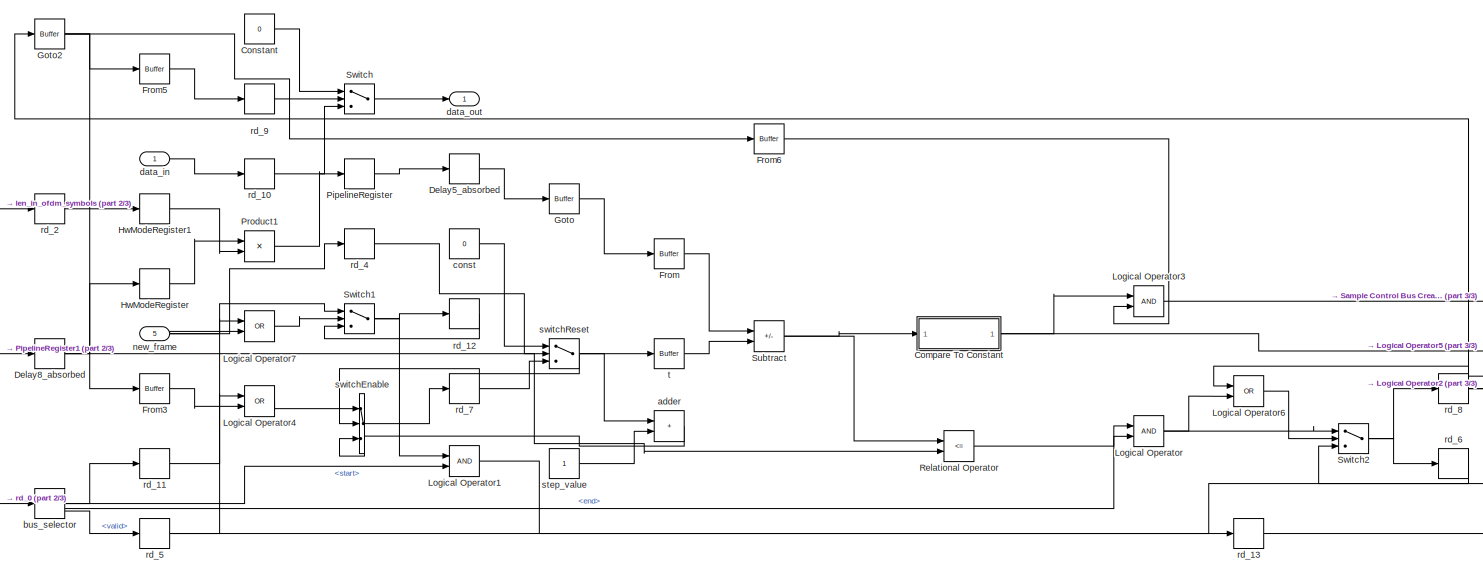
[diagram: payload_full/tone_mapping - part 1/3, center side, full height]
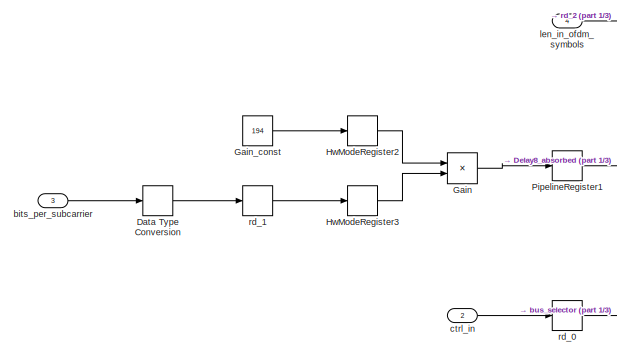
[diagram: payload_full/tone_mapping - part 2/3, middle left region]
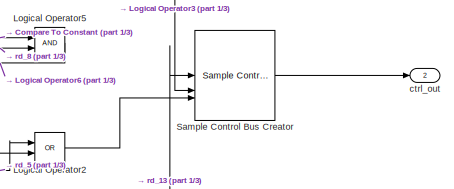
[diagram: payload_full/tone_mapping - part 3/3, bottom right region]
BLOCK [SubSystem] payload_full/tone_mapping
BLOCK [SubSystem] payload_full/tone_mapping/Compare To Constant
BLOCK [RelationalOperator] payload_full/tone_mapping/Compare To Constant/Compare
  Operator = ==
  OutDataTypeStr = boolean
  SampleTime = 1e-08
BLOCK [Constant] payload_full/tone_mapping/Compare To Constant/Constant
  OutDataTypeStr = fixdt(0, 26, 0)
  SampleTime = 1e-08
BLOCK [Inport] payload_full/tone_mapping/Compare To Constant/u
  OutDataTypeStr = fixdt(0, 26, 0)
  SampleTime = 1e-08
BLOCK [Outport] payload_full/tone_mapping/Compare To Constant/y
  SampleTime = 1e-08
BLOCK [Constant] payload_full/tone_mapping/Constant
  OutDataTypeStr = boolean
  SampleTime = 1e-08
  Value = 0
BLOCK [DataTypeConversion] payload_full/tone_mapping/Data Type Conversion
  OutDataTypeStr = uint8
  RndMeth = Floor
  SampleTime = 1e-08
  SaturateOnIntegerOverflow = off
BLOCK [Delay] payload_full/tone_mapping/Delay5_absorbed
  DelayLength = 0
  InputPortMap = u0
BLOCK [Delay] payload_full/tone_mapping/Delay8_absorbed
  DelayLength = 0
  InputPortMap = u0
BLOCK [Reference] payload_full/tone_mapping/From  REF=hdlmdlgenlib/Buffer
  SourceBlock = hdlmdlgenlib/Buffer
  SourceType = Buffer/Wire
BLOCK [Reference] payload_full/tone_mapping/From3  REF=hdlmdlgenlib/Buffer
  SourceBlock = hdlmdlgenlib/Buffer
  SourceType = Buffer/Wire
BLOCK [Reference] payload_full/tone_mapping/From5  REF=hdlmdlgenlib/Buffer
  SourceBlock = hdlmdlgenlib/Buffer
  SourceType = Buffer/Wire
BLOCK [Reference] payload_full/tone_mapping/From6  REF=hdlmdlgenlib/Buffer
  SourceBlock = hdlmdlgenlib/Buffer
  SourceType = Buffer/Wire
BLOCK [Product] payload_full/tone_mapping/Gain
  Inputs = **
  OutDataTypeStr = fixdt(0, 10, 0)
  SampleTime = 1e-08
BLOCK [Constant] payload_full/tone_mapping/Gain_const
  OutDataTypeStr = uint8
  SampleTime = 1e-08
  Value = 194
BLOCK [Reference] payload_full/tone_mapping/Goto  REF=hdlmdlgenlib/Buffer
  SourceBlock = hdlmdlgenlib/Buffer
  SourceType = Buffer/Wire
BLOCK [Reference] payload_full/tone_mapping/Goto2  REF=hdlmdlgenlib/Buffer
  SourceBlock = hdlmdlgenlib/Buffer
  SourceType = Buffer/Wire
BLOCK [Delay] payload_full/tone_mapping/HwModeRegister
  DelayLength = double(1)
  InitialCondition = 0
  InputPortMap = u0
  SampleTime = 1e-08
BLOCK [Delay] payload_full/tone_mapping/HwModeRegister1
  DelayLength = double(1)
  InitialCondition = 0
  InputPortMap = u0
  SampleTime = 1e-08
BLOCK [Delay] payload_full/tone_mapping/HwModeRegister2
  DelayLength = double(1)
  InitialCondition = 0
  InputPortMap = u0
  SampleTime = 1e-08
BLOCK [Delay] payload_full/tone_mapping/HwModeRegister3
  DelayLength = double(1)
  InitialCondition = 0
  InputPortMap = u0
  SampleTime = 1e-08
BLOCK [Logic] payload_full/tone_mapping/Logical Operator
  AllPortsSameDT = off
  OutDataTypeStr = boolean
  SampleTime = 1e-08
BLOCK [Logic] payload_full/tone_mapping/Logical Operator1
  AllPortsSameDT = off
  OutDataTypeStr = boolean
  SampleTime = 1e-08
BLOCK [Logic] payload_full/tone_mapping/Logical Operator2
  AllPortsSameDT = off
  Operator = OR
  OutDataTypeStr = boolean
  SampleTime = 1e-08
BLOCK [Logic] payload_full/tone_mapping/Logical Operator3
  AllPortsSameDT = off
  OutDataTypeStr = boolean
  SampleTime = 1e-08
BLOCK [Logic] payload_full/tone_mapping/Logical Operator4
  AllPortsSameDT = off
  Operator = OR
  OutDataTypeStr = boolean
  SampleTime = 1e-08
BLOCK [Logic] payload_full/tone_mapping/Logical Operator5
  AllPortsSameDT = off
  OutDataTypeStr = boolean
  SampleTime = 1e-08
BLOCK [Logic] payload_full/tone_mapping/Logical Operator6
  AllPortsSameDT = off
  Operator = OR
  OutDataTypeStr = boolean
  SampleTime = 1e-08
BLOCK [Logic] payload_full/tone_mapping/Logical Operator7
  AllPortsSameDT = off
  Operator = OR
  OutDataTypeStr = boolean
  SampleTime = 1e-08
BLOCK [Delay] payload_full/tone_mapping/PipelineRegister
  DelayLength = double(1)
  InitialCondition = 0
  InputPortMap = u0
  SampleTime = 1e-08
BLOCK [Delay] payload_full/tone_mapping/PipelineRegister1
  DelayLength = double(1)
  InitialCondition = 0
  InputPortMap = u0
  SampleTime = 1e-08
BLOCK [Product] payload_full/tone_mapping/Product1
  Inputs = **
  OutDataTypeStr = fixdt(0, 26, 0)
  SampleTime = 1e-08
BLOCK [RelationalOperator] payload_full/tone_mapping/Relational Operator
  InputSameDT = off
  Operator = <=
  OutDataTypeStr = boolean
  SampleTime = 1e-08
BLOCK [Reference] payload_full/tone_mapping/Sample Control Bus Creator  REF=whdlutilities/Sample Control
Bus Creator
  SourceBlock = whdlutilities/Sample Control\nBus Creator
  SourceType = Sample Control Bus Creator
BLOCK [Sum] payload_full/tone_mapping/Subtract
  AccumDataTypeStr = fixdt(1, 33, 0)
  IconShape = rectangular
  Inputs = +-
  OutDataTypeStr = fixdt(0, 26, 0)
  SampleTime = 1e-08
BLOCK [Switch] payload_full/tone_mapping/Switch
  Criteria = u2 ~= 0
  InputSameDT = off
  OutDataTypeStr = boolean
  SampleTime = 1e-08
  SaturateOnIntegerOverflow = off
  Threshold = double(0)
BLOCK [Switch] payload_full/tone_mapping/Switch1
  Criteria = u2 ~= 0
  InputSameDT = off
  OutDataTypeStr = boolean
  SampleTime = 1e-08
  SaturateOnIntegerOverflow = off
  Threshold = double(0)
BLOCK [Switch] payload_full/tone_mapping/Switch2
  Criteria = u2 ~= 0
  InputSameDT = off
  OutDataTypeStr = boolean
  SampleTime = 1e-08
  SaturateOnIntegerOverflow = off
  Threshold = double(0)
BLOCK [Sum] payload_full/tone_mapping/adder
  AccumDataTypeStr = uint32
  IconShape = rectangular
  OutDataTypeStr = uint32
  SampleTime = 1e-08
BLOCK [Inport] payload_full/tone_mapping/bits_per_subcarrier
  OutDataTypeStr = fixdt(0, 4, 0)
  Port = 3
  PortDimensions = 1
  SampleTime = 1e-08
BLOCK [BusSelector] payload_full/tone_mapping/bus_selector
  OutputSignals = start,end,valid
BLOCK [Constant] payload_full/tone_mapping/const
  OutDataTypeStr = uint32
  SampleTime = 1e-08
  Value = 0
  VectorParams1D = off
BLOCK [Inport] payload_full/tone_mapping/ctrl_in
  Port = 2
BLOCK [Outport] payload_full/tone_mapping/ctrl_out
  Port = 2
BLOCK [Inport] payload_full/tone_mapping/data_in
  OutDataTypeStr = boolean
  PortDimensions = 1
  SampleTime = 1e-08
BLOCK [Outport] payload_full/tone_mapping/data_out
  SampleTime = 1e-08
BLOCK [Inport] payload_full/tone_mapping/len_in_ofdm_symbols
  OutDataTypeStr = uint16
  Port = 4
  PortDimensions = 1
  SampleTime = 1e-08
BLOCK [Inport] payload_full/tone_mapping/new_frame
  OutDataTypeStr = boolean
  Port = 5
  PortDimensions = 1
  SampleTime = 1e-08
BLOCK [Delay] payload_full/tone_mapping/rd_0
  DelayLength = double(1)
  InitialCondition = 0
  InputPortMap = u0
  SampleTime = 1e-08
BLOCK [Delay] payload_full/tone_mapping/rd_1
  DelayLength = double(1)
  InitialCondition = 0
  InputPortMap = u0
  SampleTime = 1e-08
BLOCK [Delay] payload_full/tone_mapping/rd_10
  DelayLength = double(2)
  InitialCondition = 0
  InputPortMap = u0
  SampleTime = 1e-08
BLOCK [Delay] payload_full/tone_mapping/rd_11
  DelayLength = double(1)
  InitialCondition = 0
  InputPortMap = u0
  SampleTime = 1e-08
BLOCK [Delay] payload_full/tone_mapping/rd_12
  DelayLength = double(1)
  InitialCondition = 0
  InputPortMap = u0
  SampleTime = 1e-08
BLOCK [Delay] payload_full/tone_mapping/rd_13
  DelayLength = double(1)
  InitialCondition = 0
  InputPortMap = u0
  SampleTime = 1e-08
BLOCK [Delay] payload_full/tone_mapping/rd_2
  DelayLength = double(3)
  InitialCondition = 0
  InputPortMap = u0
  SampleTime = 1e-08
BLOCK [Delay] payload_full/tone_mapping/rd_4
  DelayLength = double(1)
  InitialCondition = 0
  InputPortMap = u0
  SampleTime = 1e-08
BLOCK [Delay] payload_full/tone_mapping/rd_5
  DelayLength = double(1)
  InitialCondition = 0
  InputPortMap = u0
  SampleTime = 1e-08
BLOCK [Delay] payload_full/tone_mapping/rd_6
  DelayLength = double(1)
  InitialCondition = 0
  InputPortMap = u0
  SampleTime = 1e-08
BLOCK [Delay] payload_full/tone_mapping/rd_7
  DelayLength = double(1)
  InitialCondition = 0
  InputPortMap = u0
  SampleTime = 1e-08
BLOCK [Delay] payload_full/tone_mapping/rd_8
  DelayLength = double(1)
  InitialCondition = 0
  InputPortMap = u0
  SampleTime = 1e-08
BLOCK [Delay] payload_full/tone_mapping/rd_9
  DelayLength = double(1)
  InitialCondition = 0
  InputPortMap = u0
  SampleTime = 1e-08
BLOCK [Constant] payload_full/tone_mapping/step_value
  OutDataTypeStr = uint32
  SampleTime = 1e-08
  VectorParams1D = off
BLOCK [MultiPortSwitch] payload_full/tone_mapping/switchEnable
  DataPortOrder = Zero-based contiguous
  DiagnosticForDefault = None
  InputSameDT = off
  Inputs = 2
  OutDataTypeStr = uint32
  SampleTime = 1e-08
  SaturateOnIntegerOverflow = off
  zeroidx = on
BLOCK [Switch] payload_full/tone_mapping/switchReset
  Criteria = u2 ~= 0
  InputSameDT = off
  OutDataTypeStr = uint32
  SampleTime = 1e-08
  SaturateOnIntegerOverflow = off
  Threshold = double(0)
BLOCK [Reference] payload_full/tone_mapping/t  REF=hdlmdlgenlib/Buffer
  SourceBlock = hdlmdlgenlib/Buffer
  SourceType = Buffer/Wire
BLOCK [Inport] payload_full/valid_in
  OutDataTypeStr = boolean
  Port = 2
  PortDimensions = 1
  SampleTime = 8e-08
BLOCK [SubSystem] payload_full/valid_to_ctrl
BLOCK [Delay] payload_full/valid_to_ctrl/Delay1
  DelayLength = double(1)
  InitialCondition = 0
  InputPortMap = u0
  SampleTime = 1e-08
BLOCK [Delay] payload_full/valid_to_ctrl/Delay2
  DelayLength = double(1)
  InitialCondition = 0
  InputPortMap = u0
  SampleTime = 1e-08
BLOCK [Logic] payload_full/valid_to_ctrl/Logical Operator
  AllPortsSameDT = off
  OutDataTypeStr = boolean
  SampleTime = 1e-08
BLOCK [Logic] payload_full/valid_to_ctrl/Logical Operator1
  AllPortsSameDT = off
  Inputs = 1
  Operator = NOT
  OutDataTypeStr = boolean
  SampleTime = 1e-08
BLOCK [Logic] payload_full/valid_to_ctrl/Logical Operator2
  AllPortsSameDT = off
  OutDataTypeStr = boolean
  SampleTime = 1e-08
BLOCK [Logic] payload_full/valid_to_ctrl/Logical Operator3
  AllPortsSameDT = off
  Inputs = 1
  Operator = NOT
  OutDataTypeStr = boolean
  SampleTime = 1e-08
BLOCK [Reference] payload_full/valid_to_ctrl/Sample Control Bus Creator  REF=whdlutilities/Sample Control
Bus Creator
  SourceBlock = whdlutilities/Sample Control\nBus Creator
  SourceType = Sample Control Bus Creator
BLOCK [Outport] payload_full/valid_to_ctrl/ctrlOut
  SampleTime = 1e-08
BLOCK [Inport] payload_full/valid_to_ctrl/validIn
  OutDataTypeStr = boolean
  SampleTime = 1e-08
ANNOTATION Data and Valid Selector: This subsystem is active only when the input ready signal is active. The subsystem selects the Input Valid value and outputs the valid signal. The subsystem also selects the payload data from an LUT based on the Input Valid signal and outputs it as data signal.
ANNOTATION payload_full: Note: careful when adding delays to signals "ready, valid or data" outside this block
ANNOTATION payload_full/batid_to_bits_per_subcarrier: De momento, el valor de BATID va a coincidir con el valor de la cantidad de bits por subcarrier.
ANNOTATION payload_full/batid_to_bits_per_subcarrier: Remember that "bat_id" is LSB first.
ANNOTATION payload_full/next_frame_to_ready: Given a next frame rising edge, this subsystem will generate a "ready" signal for the duration of "payloadWordsPerBlock0" clock cycles
ANNOTATION payload_full/psdu_size_to_payload_len: Repetition not supported
LINE Bitwise Operator:1 -> Rate Transition:1
LINE Data Type Conversion1:1 -> payload_full:2
LINE Data Type Conversion2:1 -> payload_full:3
LINE Data Type Conversion3:1 -> payload_full:4
LINE Data Type Conversion4:1 -> payload_full:5
LINE Data Type Conversion5:1 -> payload_full:6
LINE Data Type Conversion6:1 -> payload_full:7
LINE Data Type Conversion7:1 -> payload_full:8
LINE Data Type Conversion8:1 -> payload_full:9
LINE Data Type Conversion9:1 -> payload_full:10
LINE Data Type Conversion:1 -> payload_full:1
LINE Data and Valid Selector/Data Type Conversion1:1 -> Data and Valid Selector/last:1
NET Data and Valid Selector/Data Type Conversion:1 -> Data and Valid Selector/HDL Counter:1, Data and Valid Selector/valid:1
LINE Data and Valid Selector/Direct Lookup Table (n-D):1 -> Data and Valid Selector/data:1
LINE Data and Valid Selector/HDL Counter:1 -> Data and Valid Selector/Direct Lookup Table (n-D):1
LINE Data and Valid Selector/Input Valid1:1 -> Data and Valid Selector/Data Type Conversion1:1
LINE Data and Valid Selector/Input Valid:1 -> Data and Valid Selector/Data Type Conversion:1
LINE Data and Valid Selector:1 -> Data Type Conversion:1
LINE Data and Valid Selector:2 -> Data Type Conversion1:1
LINE Data and Valid Selector:3 -> Delay9:1
LINE Delay1:1 -> Data Type Conversion6:1
LINE Delay2:1 -> Data Type Conversion5:1
LINE Delay3:1 -> Data Type Conversion4:1
LINE Delay4:1 -> Data Type Conversion9:1
LINE Delay5:1 -> Data Type Conversion8:1
LINE Delay6:1 -> Data Type Conversion7:1
LINE Delay7:1 -> Tapped Delay:1
LINE Delay9:1 -> Data Type Conversion2:1
LINE Delay:1 -> Data Type Conversion3:1
LINE HDL Counter:1 -> Terminator2:1
LINE HDL Counter:2 -> Stop Simulation:1
NET Logical Operator:1 -> Delay:1, Subsystem:enable
LINE New Frame:1 -> Logical Operator:2
LINE Rate Transition:1 -> Logical Operator:1
LINE Sample Control Bus Selector:1 -> To Workspace1:1
NET Sample Control Bus Selector:2 -> Delay7:1, HDL Counter:1, To Workspace2:1
LINE Sample Control Bus Selector:3 -> To Workspace3:1
LINE Subsystem/Reshape1:1 -> Subsystem/fec_rate:1
LINE Subsystem/Reshape2:1 -> Subsystem/block_size:1
LINE Subsystem/Reshape3:1 -> Subsystem/bat_id:1
LINE Subsystem/Reshape4:1 -> Subsystem/psdu_size:1
LINE Subsystem/Reshape5:1 -> Subsystem/rep_number:1
LINE Subsystem/Reshape:1 -> Subsystem/scrambler_init:1
LINE Subsystem/input1:1 -> Subsystem/Reshape1:1
LINE Subsystem/input2:1 -> Subsystem/Reshape2:1
LINE Subsystem/input3:1 -> Subsystem/Reshape3:1
LINE Subsystem/input4:1 -> Subsystem/Reshape4:1
LINE Subsystem/input5:1 -> Subsystem/Reshape5:1
LINE Subsystem/input:1 -> Subsystem/Reshape:1
LINE Subsystem:1 -> Delay3:1
LINE Subsystem:2 -> Delay2:1
LINE Subsystem:3 -> Delay1:1
LINE Subsystem:4 -> Delay6:1
LINE Subsystem:5 -> Delay5:1
LINE Subsystem:6 -> Delay4:1
LINE Tapped Delay:1 -> Bitwise Operator:1
LINE payload_full/From:1 -> payload_full/tone_mapping:5
LINE payload_full/Goto:1 -> payload_full/From:1
LINE payload_full/Logical Operator1:1 -> payload_full/next_frame_to_ready:1
LINE payload_full/Logical Operator5:1 -> payload_full/Switch1:2
LINE payload_full/Logical Operator:1 -> payload_full/Serializer1D:2
LINE payload_full/Rate Transition1:1 -> payload_full/p_scrambler:3
NET payload_full/Rate Transition4:1 -> payload_full/bits_per_subcarrier:1, payload_full/tone_mapping:3
NET payload_full/Rate Transition5:1 -> payload_full/len_in_ofdm_symbols:1, payload_full/tone_mapping:4
LINE payload_full/Rate Transition6:1 -> payload_full/Goto:1
LINE payload_full/Rate Transition:1 -> payload_full/rd_5:1
LINE payload_full/Serializer1D:1 -> payload_full/rd_7:1
LINE payload_full/Serializer1D:2 -> payload_full/valid_to_ctrl:1
NET payload_full/Switch1:1 -> payload_full/Logical Operator1:1, payload_full/rd_1:1
LINE payload_full/bat_id:1 -> payload_full/batid_to_bits_per_subcarrier:1
LINE payload_full/batid_to_bits_per_subcarrier/Bit Concat:1 -> payload_full/batid_to_bits_per_subcarrier/bits_per_subcarrier:1
LINE payload_full/batid_to_bits_per_subcarrier/From1:1 -> payload_full/batid_to_bits_per_subcarrier/Bit Concat:3
LINE payload_full/batid_to_bits_per_subcarrier/From2:1 -> payload_full/batid_to_bits_per_subcarrier/Bit Concat:2
LINE payload_full/batid_to_bits_per_subcarrier/From3:1 -> payload_full/batid_to_bits_per_subcarrier/Bit Concat:1
LINE payload_full/batid_to_bits_per_subcarrier/From:1 -> payload_full/batid_to_bits_per_subcarrier/Bit Concat:4
LINE payload_full/batid_to_bits_per_subcarrier/Goto1:1 -> payload_full/batid_to_bits_per_subcarrier/From3:1
LINE payload_full/batid_to_bits_per_subcarrier/Goto2:1 -> payload_full/batid_to_bits_per_subcarrier/From2:1
LINE payload_full/batid_to_bits_per_subcarrier/Goto3:1 -> payload_full/batid_to_bits_per_subcarrier/From1:1
LINE payload_full/batid_to_bits_per_subcarrier/Goto4:1 -> payload_full/batid_to_bits_per_subcarrier/From:1
LINE payload_full/batid_to_bits_per_subcarrier/bat_id:1 -> payload_full/batid_to_bits_per_subcarrier/t:1
LINE payload_full/batid_to_bits_per_subcarrier/t:1 -> payload_full/batid_to_bits_per_subcarrier/Goto4:1
LINE payload_full/batid_to_bits_per_subcarrier/t:2 -> payload_full/batid_to_bits_per_subcarrier/Goto3:1
LINE payload_full/batid_to_bits_per_subcarrier/t:3 -> payload_full/batid_to_bits_per_subcarrier/Goto2:1
LINE payload_full/batid_to_bits_per_subcarrier/t:4 -> payload_full/batid_to_bits_per_subcarrier/Goto1:1
LINE payload_full/batid_to_bits_per_subcarrier/t:5 -> payload_full/batid_to_bits_per_subcarrier/bat_id_4_term4:1
NET payload_full/batid_to_bits_per_subcarrier:1 -> payload_full/psdu_size_to_payload_len:1, payload_full/rd_8:1
LINE payload_full/block_size:1 -> payload_full/block_size_term6:1
LINE payload_full/concatenate:1 -> payload_full/Serializer1D:1
LINE payload_full/data_in:1 -> payload_full/rd_0:1
LINE payload_full/fec_rate:1 -> payload_full/fec_rate_term5:1
LINE payload_full/last_frame:1 -> payload_full/Logical Operator5:2
NET payload_full/new_frame:1 -> payload_full/Logical Operator5:1, payload_full/Switch1:1, payload_full/rd_10:1
LINE payload_full/next_frame_to_ready/Delay_Switch:1 -> payload_full/next_frame_to_ready/crp_out_delay:1
LINE payload_full/next_frame_to_ready/HDL Counter:1 -> payload_full/next_frame_to_ready/HDL Counter_absorbed:1
LINE payload_full/next_frame_to_ready/HDL Counter_absorbed:1 -> payload_full/next_frame_to_ready/in2_repeat:1
LINE payload_full/next_frame_to_ready/Logical Operator2:1 -> payload_full/next_frame_to_ready/rd_1:1
LINE payload_full/next_frame_to_ready/Logical Operator3:1 -> payload_full/next_frame_to_ready/rd_3:1
LINE payload_full/next_frame_to_ready/Unit Delay Enabled Synchronous_lowered:1 -> payload_full/next_frame_to_ready/Unit Delay Enabled Synchronous_lowered_absorbed:1
NET payload_full/next_frame_to_ready/Unit Delay Enabled Synchronous_lowered_absorbed:1 -> payload_full/next_frame_to_ready/in1_repeat:1, payload_full/next_frame_to_ready/ready:1
LINE payload_full/next_frame_to_ready/adder:1 -> payload_full/next_frame_to_ready/rd_9:1
LINE payload_full/next_frame_to_ready/compare1:1 -> payload_full/next_frame_to_ready/or:2
NET payload_full/next_frame_to_ready/compare:1 -> payload_full/next_frame_to_ready/or:1, payload_full/next_frame_to_ready/rd_8:1
LINE payload_full/next_frame_to_ready/countFrom:1 -> payload_full/next_frame_to_ready/switch:1
LINE payload_full/next_frame_to_ready/crp_out_delay1:1 -> payload_full/next_frame_to_ready/HDL Counter:1
LINE payload_full/next_frame_to_ready/crp_out_delay:1 -> payload_full/next_frame_to_ready/Unit Delay Enabled Synchronous_lowered:1
LINE payload_full/next_frame_to_ready/in0_repeat:1 -> payload_full/next_frame_to_ready/rd_0:1
LINE payload_full/next_frame_to_ready/in1_repeat:1 -> payload_full/next_frame_to_ready/rd_4:1
NET payload_full/next_frame_to_ready/in2_repeat:1 -> payload_full/next_frame_to_ready/adder:1, payload_full/next_frame_to_ready/compare1:1, payload_full/next_frame_to_ready/compare:1, payload_full/next_frame_to_ready/rd_6:1
LINE payload_full/next_frame_to_ready/next_frame:1 -> payload_full/next_frame_to_ready/rising_edge_detector:1
NET payload_full/next_frame_to_ready/or:1 -> payload_full/next_frame_to_ready/Logical Operator2:1, payload_full/next_frame_to_ready/rd_2:1
LINE payload_full/next_frame_to_ready/rd_0:1 -> payload_full/next_frame_to_ready/Logical Operator3:1
LINE payload_full/next_frame_to_ready/rd_10:1 -> payload_full/next_frame_to_ready/switchEnable:3
LINE payload_full/next_frame_to_ready/rd_1:1 -> payload_full/next_frame_to_ready/Delay_Switch:1
LINE payload_full/next_frame_to_ready/rd_2:1 -> payload_full/next_frame_to_ready/Logical Operator3:2
LINE payload_full/next_frame_to_ready/rd_3:1 -> payload_full/next_frame_to_ready/Delay_Switch:2
NET payload_full/next_frame_to_ready/rd_4:1 -> payload_full/next_frame_to_ready/Delay_Switch:3, payload_full/next_frame_to_ready/switchEnable:1
LINE payload_full/next_frame_to_ready/rd_6:1 -> payload_full/next_frame_to_ready/switchEnable:2
LINE payload_full/next_frame_to_ready/rd_8:1 -> payload_full/next_frame_to_ready/switch:2
LINE payload_full/next_frame_to_ready/rd_9:1 -> payload_full/next_frame_to_ready/switch:3
LINE payload_full/next_frame_to_ready/rising_edge_detector/Delay2:1 -> payload_full/next_frame_to_ready/rising_edge_detector/Logical Operator2:1
NET payload_full/next_frame_to_ready/rising_edge_detector/In:1 -> payload_full/next_frame_to_ready/rising_edge_detector/Delay2:1, payload_full/next_frame_to_ready/rising_edge_detector/Logical Operator1:1
LINE payload_full/next_frame_to_ready/rising_edge_detector/Logical Operator1:1 -> payload_full/next_frame_to_ready/rising_edge_detector/Out:1
LINE payload_full/next_frame_to_ready/rising_edge_detector/Logical Operator2:1 -> payload_full/next_frame_to_ready/rising_edge_detector/Logical Operator1:2
LINE payload_full/next_frame_to_ready/rising_edge_detector:1 -> payload_full/next_frame_to_ready/in0_repeat:1
LINE payload_full/next_frame_to_ready/step_value:1 -> payload_full/next_frame_to_ready/adder:2
LINE payload_full/next_frame_to_ready/switch:1 -> payload_full/next_frame_to_ready/rd_10:1
LINE payload_full/next_frame_to_ready/switchEnable:1 -> payload_full/next_frame_to_ready/crp_out_delay1:1
NET payload_full/next_frame_to_ready:1 -> payload_full/rd_6:1, payload_full/ready:1
LINE payload_full/p_scrambler/C10_lowered:1 -> payload_full/p_scrambler/C10_lowered_switch:1
LINE payload_full/p_scrambler/C10_lowered_Initial_Val:1 -> payload_full/p_scrambler/C10_lowered_switch:3
LINE payload_full/p_scrambler/C10_lowered_ctrl_const:1 -> payload_full/p_scrambler/C10_lowered_ctrl_delay:1
LINE payload_full/p_scrambler/C10_lowered_ctrl_delay:1 -> payload_full/p_scrambler/C10_lowered_switch:2
NET payload_full/p_scrambler/C10_lowered_switch:1 -> payload_full/p_scrambler/enb_in5:3, payload_full/p_scrambler/enb_in6:1
LINE payload_full/p_scrambler/C11_lowered:1 -> payload_full/p_scrambler/C11_lowered_switch:1
LINE payload_full/p_scrambler/C11_lowered_Initial_Val:1 -> payload_full/p_scrambler/C11_lowered_switch:3
LINE payload_full/p_scrambler/C11_lowered_ctrl_const:1 -> payload_full/p_scrambler/C11_lowered_ctrl_delay:1
LINE payload_full/p_scrambler/C11_lowered_ctrl_delay:1 -> payload_full/p_scrambler/C11_lowered_switch:2
NET payload_full/p_scrambler/C11_lowered_switch:1 -> payload_full/p_scrambler/enb_in6:3, payload_full/p_scrambler/enb_in7:1
LINE payload_full/p_scrambler/C12_lowered:1 -> payload_full/p_scrambler/C12_lowered_switch:1
LINE payload_full/p_scrambler/C12_lowered_Initial_Val:1 -> payload_full/p_scrambler/C12_lowered_switch:3
LINE payload_full/p_scrambler/C12_lowered_ctrl_const:1 -> payload_full/p_scrambler/C12_lowered_ctrl_delay:1
LINE payload_full/p_scrambler/C12_lowered_ctrl_delay:1 -> payload_full/p_scrambler/C12_lowered_switch:2
NET payload_full/p_scrambler/C12_lowered_switch:1 -> payload_full/p_scrambler/enb_in7:3, payload_full/p_scrambler/enb_in8:1
LINE payload_full/p_scrambler/C13_lowered:1 -> payload_full/p_scrambler/C13_lowered_switch:1
LINE payload_full/p_scrambler/C13_lowered_Initial_Val:1 -> payload_full/p_scrambler/C13_lowered_switch:3
LINE payload_full/p_scrambler/C13_lowered_ctrl_const:1 -> payload_full/p_scrambler/C13_lowered_ctrl_delay:1
LINE payload_full/p_scrambler/C13_lowered_ctrl_delay:1 -> payload_full/p_scrambler/C13_lowered_switch:2
NET payload_full/p_scrambler/C13_lowered_switch:1 -> payload_full/p_scrambler/enb_in8:3, payload_full/p_scrambler/enb_in9:1
LINE payload_full/p_scrambler/C14_lowered:1 -> payload_full/p_scrambler/C14_lowered_switch:1
LINE payload_full/p_scrambler/C14_lowered_Initial_Val:1 -> payload_full/p_scrambler/C14_lowered_switch:3
LINE payload_full/p_scrambler/C14_lowered_ctrl_const:1 -> payload_full/p_scrambler/C14_lowered_ctrl_delay:1
LINE payload_full/p_scrambler/C14_lowered_ctrl_delay:1 -> payload_full/p_scrambler/C14_lowered_switch:2
NET payload_full/p_scrambler/C14_lowered_switch:1 -> payload_full/p_scrambler/enb_in10:1, payload_full/p_scrambler/enb_in9:3
LINE payload_full/p_scrambler/C15_lowered:1 -> payload_full/p_scrambler/C15_lowered_switch:1
LINE payload_full/p_scrambler/C15_lowered_Initial_Val:1 -> payload_full/p_scrambler/C15_lowered_switch:3
LINE payload_full/p_scrambler/C15_lowered_ctrl_const:1 -> payload_full/p_scrambler/C15_lowered_ctrl_delay:1
LINE payload_full/p_scrambler/C15_lowered_ctrl_delay:1 -> payload_full/p_scrambler/C15_lowered_switch:2
NET payload_full/p_scrambler/C15_lowered_switch:1 -> payload_full/p_scrambler/enb_in10:3, payload_full/p_scrambler/enb_in11:1
LINE payload_full/p_scrambler/C16_lowered:1 -> payload_full/p_scrambler/C16_lowered_switch:1
LINE payload_full/p_scrambler/C16_lowered_Initial_Val:1 -> payload_full/p_scrambler/C16_lowered_switch:3
LINE payload_full/p_scrambler/C16_lowered_ctrl_const:1 -> payload_full/p_scrambler/C16_lowered_ctrl_delay:1
LINE payload_full/p_scrambler/C16_lowered_ctrl_delay:1 -> payload_full/p_scrambler/C16_lowered_switch:2
NET payload_full/p_scrambler/C16_lowered_switch:1 -> payload_full/p_scrambler/enb_in11:3, payload_full/p_scrambler/enb_in12:1
LINE payload_full/p_scrambler/C17_lowered:1 -> payload_full/p_scrambler/C17_lowered_switch:1
LINE payload_full/p_scrambler/C17_lowered_Initial_Val:1 -> payload_full/p_scrambler/C17_lowered_switch:3
LINE payload_full/p_scrambler/C17_lowered_ctrl_const:1 -> payload_full/p_scrambler/C17_lowered_ctrl_delay:1
LINE payload_full/p_scrambler/C17_lowered_ctrl_delay:1 -> payload_full/p_scrambler/C17_lowered_switch:2
NET payload_full/p_scrambler/C17_lowered_switch:1 -> payload_full/p_scrambler/enb_in12:3, payload_full/p_scrambler/enb_in13:1
LINE payload_full/p_scrambler/C18_lowered:1 -> payload_full/p_scrambler/C18_lowered_switch:1
LINE payload_full/p_scrambler/C18_lowered_Initial_Val:1 -> payload_full/p_scrambler/C18_lowered_switch:3
LINE payload_full/p_scrambler/C18_lowered_ctrl_const:1 -> payload_full/p_scrambler/C18_lowered_ctrl_delay:1
LINE payload_full/p_scrambler/C18_lowered_ctrl_delay:1 -> payload_full/p_scrambler/C18_lowered_switch:2
NET payload_full/p_scrambler/C18_lowered_switch:1 -> payload_full/p_scrambler/Logical Operator1:2, payload_full/p_scrambler/enb_in13:3, payload_full/p_scrambler/enb_in14:1
LINE payload_full/p_scrambler/C19_lowered:1 -> payload_full/p_scrambler/C19_lowered_switch:1
LINE payload_full/p_scrambler/C19_lowered_Initial_Val:1 -> payload_full/p_scrambler/C19_lowered_switch:3
LINE payload_full/p_scrambler/C19_lowered_ctrl_const:1 -> payload_full/p_scrambler/C19_lowered_ctrl_delay:1
LINE payload_full/p_scrambler/C19_lowered_ctrl_delay:1 -> payload_full/p_scrambler/C19_lowered_switch:2
NET payload_full/p_scrambler/C19_lowered_switch:1 -> payload_full/p_scrambler/enb_in14:3, payload_full/p_scrambler/enb_in15:1
LINE payload_full/p_scrambler/C20_lowered:1 -> payload_full/p_scrambler/C20_lowered_switch:1
LINE payload_full/p_scrambler/C20_lowered_Initial_Val:1 -> payload_full/p_scrambler/C20_lowered_switch:3
LINE payload_full/p_scrambler/C20_lowered_ctrl_const:1 -> payload_full/p_scrambler/C20_lowered_ctrl_delay:1
LINE payload_full/p_scrambler/C20_lowered_ctrl_delay:1 -> payload_full/p_scrambler/C20_lowered_switch:2
NET payload_full/p_scrambler/C20_lowered_switch:1 -> payload_full/p_scrambler/enb_in15:3, payload_full/p_scrambler/enb_in16:1
LINE payload_full/p_scrambler/C21_lowered:1 -> payload_full/p_scrambler/C21_lowered_switch:1
LINE payload_full/p_scrambler/C21_lowered_Initial_Val:1 -> payload_full/p_scrambler/C21_lowered_switch:3
LINE payload_full/p_scrambler/C21_lowered_ctrl_const:1 -> payload_full/p_scrambler/C21_lowered_ctrl_delay:1
LINE payload_full/p_scrambler/C21_lowered_ctrl_delay:1 -> payload_full/p_scrambler/C21_lowered_switch:2
NET payload_full/p_scrambler/C21_lowered_switch:1 -> payload_full/p_scrambler/enb_in16:3, payload_full/p_scrambler/enb_in17:1
LINE payload_full/p_scrambler/C22_lowered:1 -> payload_full/p_scrambler/C22_lowered_switch:1
LINE payload_full/p_scrambler/C22_lowered_Initial_Val:1 -> payload_full/p_scrambler/C22_lowered_switch:3
LINE payload_full/p_scrambler/C22_lowered_ctrl_const:1 -> payload_full/p_scrambler/C22_lowered_ctrl_delay:1
LINE payload_full/p_scrambler/C22_lowered_ctrl_delay:1 -> payload_full/p_scrambler/C22_lowered_switch:2
NET payload_full/p_scrambler/C22_lowered_switch:1 -> payload_full/p_scrambler/enb_in17:3, payload_full/p_scrambler/enb_in18:1
LINE payload_full/p_scrambler/C23_lowered:1 -> payload_full/p_scrambler/C23_lowered_switch:1
LINE payload_full/p_scrambler/C23_lowered_Initial_Val:1 -> payload_full/p_scrambler/C23_lowered_switch:3
LINE payload_full/p_scrambler/C23_lowered_ctrl_const:1 -> payload_full/p_scrambler/C23_lowered_ctrl_delay:1
LINE payload_full/p_scrambler/C23_lowered_ctrl_delay:1 -> payload_full/p_scrambler/C23_lowered_switch:2
NET payload_full/p_scrambler/C23_lowered_switch:1 -> payload_full/p_scrambler/Logical Operator1:1, payload_full/p_scrambler/enb_in18:3
LINE payload_full/p_scrambler/C5_lowered:1 -> payload_full/p_scrambler/C5_lowered_switch:1
LINE payload_full/p_scrambler/C5_lowered_Initial_Val:1 -> payload_full/p_scrambler/C5_lowered_switch:3
LINE payload_full/p_scrambler/C5_lowered_ctrl_const:1 -> payload_full/p_scrambler/C5_lowered_ctrl_delay:1
LINE payload_full/p_scrambler/C5_lowered_ctrl_delay:1 -> payload_full/p_scrambler/C5_lowered_switch:2
NET payload_full/p_scrambler/C5_lowered_switch:1 -> payload_full/p_scrambler/enb_in1:1, payload_full/p_scrambler/enb_in:3
LINE payload_full/p_scrambler/C6_lowered:1 -> payload_full/p_scrambler/C6_lowered_switch:1
LINE payload_full/p_scrambler/C6_lowered_Initial_Val:1 -> payload_full/p_scrambler/C6_lowered_switch:3
LINE payload_full/p_scrambler/C6_lowered_ctrl_const:1 -> payload_full/p_scrambler/C6_lowered_ctrl_delay:1
LINE payload_full/p_scrambler/C6_lowered_ctrl_delay:1 -> payload_full/p_scrambler/C6_lowered_switch:2
NET payload_full/p_scrambler/C6_lowered_switch:1 -> payload_full/p_scrambler/enb_in1:3, payload_full/p_scrambler/enb_in2:1
LINE payload_full/p_scrambler/C7_lowered:1 -> payload_full/p_scrambler/C7_lowered_switch:1
LINE payload_full/p_scrambler/C7_lowered_Initial_Val:1 -> payload_full/p_scrambler/C7_lowered_switch:3
LINE payload_full/p_scrambler/C7_lowered_ctrl_const:1 -> payload_full/p_scrambler/C7_lowered_ctrl_delay:1
LINE payload_full/p_scrambler/C7_lowered_ctrl_delay:1 -> payload_full/p_scrambler/C7_lowered_switch:2
NET payload_full/p_scrambler/C7_lowered_switch:1 -> payload_full/p_scrambler/enb_in2:3, payload_full/p_scrambler/enb_in3:1
LINE payload_full/p_scrambler/C8_lowered:1 -> payload_full/p_scrambler/C8_lowered_switch:1
LINE payload_full/p_scrambler/C8_lowered_Initial_Val:1 -> payload_full/p_scrambler/C8_lowered_switch:3
LINE payload_full/p_scrambler/C8_lowered_ctrl_const:1 -> payload_full/p_scrambler/C8_lowered_ctrl_delay:1
LINE payload_full/p_scrambler/C8_lowered_ctrl_delay:1 -> payload_full/p_scrambler/C8_lowered_switch:2
NET payload_full/p_scrambler/C8_lowered_switch:1 -> payload_full/p_scrambler/enb_in3:3, payload_full/p_scrambler/enb_in4:1
LINE payload_full/p_scrambler/C9_lowered:1 -> payload_full/p_scrambler/C9_lowered_switch:1
LINE payload_full/p_scrambler/C9_lowered_Initial_Val:1 -> payload_full/p_scrambler/C9_lowered_switch:3
LINE payload_full/p_scrambler/C9_lowered_ctrl_const:1 -> payload_full/p_scrambler/C9_lowered_ctrl_delay:1
LINE payload_full/p_scrambler/C9_lowered_ctrl_delay:1 -> payload_full/p_scrambler/C9_lowered_switch:2
NET payload_full/p_scrambler/C9_lowered_switch:1 -> payload_full/p_scrambler/enb_in4:3, payload_full/p_scrambler/enb_in5:1
LINE payload_full/p_scrambler/Delay1:1 -> payload_full/p_scrambler/Logical Operator:1
LINE payload_full/p_scrambler/Delay3:1 -> payload_full/p_scrambler/Sample Control Bus Creator:1
LINE payload_full/p_scrambler/Delay4:1 -> payload_full/p_scrambler/Sample Control Bus Creator:2
LINE payload_full/p_scrambler/Delay5:1 -> payload_full/p_scrambler/Sample Control Bus Creator:3
LINE payload_full/p_scrambler/Delay_Switch1:1 -> payload_full/p_scrambler/Unit Delay Enabled Synchronous_lowered:1
LINE payload_full/p_scrambler/Delay_Switch2:1 -> payload_full/p_scrambler/Unit Delay Enabled Synchronous1_lowered:1
LINE payload_full/p_scrambler/Delay_Switch3:1 -> payload_full/p_scrambler/Unit Delay Enabled Synchronous2_lowered:1
LINE payload_full/p_scrambler/Delay_Switch:1 -> payload_full/p_scrambler/Unit Delay Enabled Synchronous3_lowered:1
LINE payload_full/p_scrambler/From10:1 -> payload_full/p_scrambler/enb_in1:2
LINE payload_full/p_scrambler/From11:1 -> payload_full/p_scrambler/reset_in1:2
LINE payload_full/p_scrambler/From12:1 -> payload_full/p_scrambler/enb_in2:2
LINE payload_full/p_scrambler/From13:1 -> payload_full/p_scrambler/reset_in2:2
LINE payload_full/p_scrambler/From14:1 -> payload_full/p_scrambler/enb_in3:2
LINE payload_full/p_scrambler/From15:1 -> payload_full/p_scrambler/reset_in3:2
LINE payload_full/p_scrambler/From16:1 -> payload_full/p_scrambler/enb_in4:2
LINE payload_full/p_scrambler/From17:1 -> payload_full/p_scrambler/reset_in4:2
LINE payload_full/p_scrambler/From18:1 -> payload_full/p_scrambler/enb_in9:2
LINE payload_full/p_scrambler/From19:1 -> payload_full/p_scrambler/reset_in9:2
LINE payload_full/p_scrambler/From1:1 -> payload_full/p_scrambler/Switch:2
LINE payload_full/p_scrambler/From20:1 -> payload_full/p_scrambler/enb_in10:2
LINE payload_full/p_scrambler/From21:1 -> payload_full/p_scrambler/reset_in10:2
LINE payload_full/p_scrambler/From22:1 -> payload_full/p_scrambler/enb_in11:2
LINE payload_full/p_scrambler/From23:1 -> payload_full/p_scrambler/reset_in11:2
LINE payload_full/p_scrambler/From24:1 -> payload_full/p_scrambler/enb_in5:2
LINE payload_full/p_scrambler/From25:1 -> payload_full/p_scrambler/reset_in5:2
LINE payload_full/p_scrambler/From26:1 -> payload_full/p_scrambler/enb_in6:2
LINE payload_full/p_scrambler/From27:1 -> payload_full/p_scrambler/reset_in6:2
LINE payload_full/p_scrambler/From28:1 -> payload_full/p_scrambler/enb_in7:2
LINE payload_full/p_scrambler/From29:1 -> payload_full/p_scrambler/reset_in7:2
LINE payload_full/p_scrambler/From2:1 -> payload_full/p_scrambler/Delay_Switch1:2
LINE payload_full/p_scrambler/From30:1 -> payload_full/p_scrambler/enb_in8:2
LINE payload_full/p_scrambler/From31:1 -> payload_full/p_scrambler/reset_in8:2
LINE payload_full/p_scrambler/From32:1 -> payload_full/p_scrambler/enb_in16:2
LINE payload_full/p_scrambler/From33:1 -> payload_full/p_scrambler/reset_in16:2
LINE payload_full/p_scrambler/From34:1 -> payload_full/p_scrambler/enb_in17:2
LINE payload_full/p_scrambler/From35:1 -> payload_full/p_scrambler/reset_in17:2
LINE payload_full/p_scrambler/From36:1 -> payload_full/p_scrambler/enb_in18:2
LINE payload_full/p_scrambler/From37:1 -> payload_full/p_scrambler/reset_in18:2
LINE payload_full/p_scrambler/From38:1 -> payload_full/p_scrambler/enb_in12:2
LINE payload_full/p_scrambler/From39:1 -> payload_full/p_scrambler/reset_in12:2
LINE payload_full/p_scrambler/From3:1 -> payload_full/p_scrambler/Switch1:2
LINE payload_full/p_scrambler/From40:1 -> payload_full/p_scrambler/enb_in13:2
LINE payload_full/p_scrambler/From41:1 -> payload_full/p_scrambler/reset_in13:2
LINE payload_full/p_scrambler/From42:1 -> payload_full/p_scrambler/enb_in14:2
LINE payload_full/p_scrambler/From43:1 -> payload_full/p_scrambler/reset_in14:2
LINE payload_full/p_scrambler/From44:1 -> payload_full/p_scrambler/enb_in15:2
LINE payload_full/p_scrambler/From45:1 -> payload_full/p_scrambler/reset_in15:2
LINE payload_full/p_scrambler/From4:1 -> payload_full/p_scrambler/Delay_Switch2:2
LINE payload_full/p_scrambler/From5:1 -> payload_full/p_scrambler/Switch3:2
LINE payload_full/p_scrambler/From6:1 -> payload_full/p_scrambler/Delay_Switch3:2
LINE payload_full/p_scrambler/From7:1 -> payload_full/p_scrambler/Switch2:2
LINE payload_full/p_scrambler/From8:1 -> payload_full/p_scrambler/enb_in:2
LINE payload_full/p_scrambler/From9:1 -> payload_full/p_scrambler/reset_in:2
LINE payload_full/p_scrambler/From:1 -> payload_full/p_scrambler/Delay_Switch:2
NET payload_full/p_scrambler/Goto2:1 -> payload_full/p_scrambler/From10:1, payload_full/p_scrambler/From12:1, payload_full/p_scrambler/From14:1, payload_full/p_scrambler/From16:1, payload_full/p_scrambler/From18:1, payload_full/p_scrambler/From20:1, payload_full/p_scrambler/From22:1, payload_full/p_scrambler/From24:1, payload_full/p_scrambler/From26:1, payload_full/p_scrambler/From28:1, payload_full/p_scrambler/From2:1, payload_full/p_scrambler/From30:1, payload_full/p_scrambler/From32:1, payload_full/p_scrambler/From34:1, payload_full/p_scrambler/From36:1, payload_full/p_scrambler/From38:1, payload_full/p_scrambler/From40:1, payload_full/p_scrambler/From42:1, payload_full/p_scrambler/From44:1, payload_full/p_scrambler/From4:1, payload_full/p_scrambler/From6:1, payload_full/p_scrambler/From8:1, payload_full/p_scrambler/From:1
NET payload_full/p_scrambler/Goto3:1 -> payload_full/p_scrambler/From11:1, payload_full/p_scrambler/From13:1, payload_full/p_scrambler/From15:1, payload_full/p_scrambler/From17:1, payload_full/p_scrambler/From19:1, payload_full/p_scrambler/From1:1, payload_full/p_scrambler/From21:1, payload_full/p_scrambler/From23:1, payload_full/p_scrambler/From25:1, payload_full/p_scrambler/From27:1, payload_full/p_scrambler/From29:1, payload_full/p_scrambler/From31:1, payload_full/p_scrambler/From33:1, payload_full/p_scrambler/From35:1, payload_full/p_scrambler/From37:1, payload_full/p_scrambler/From39:1, payload_full/p_scrambler/From3:1, payload_full/p_scrambler/From41:1, payload_full/p_scrambler/From43:1, payload_full/p_scrambler/From45:1, payload_full/p_scrambler/From5:1, payload_full/p_scrambler/From7:1, payload_full/p_scrambler/From9:1
LINE payload_full/p_scrambler/Initial_Val10:1 -> payload_full/p_scrambler/reset_in15:1
LINE payload_full/p_scrambler/Initial_Val11:1 -> payload_full/p_scrambler/reset_in16:1
LINE payload_full/p_scrambler/Initial_Val12:1 -> payload_full/p_scrambler/reset_in17:1
LINE payload_full/p_scrambler/Initial_Val13:1 -> payload_full/p_scrambler/reset_in18:1
LINE payload_full/p_scrambler/Initial_Val14:1 -> payload_full/p_scrambler/reset_in:1
LINE payload_full/p_scrambler/Initial_Val15:1 -> payload_full/p_scrambler/reset_in1:1
LINE payload_full/p_scrambler/Initial_Val16:1 -> payload_full/p_scrambler/reset_in2:1
LINE payload_full/p_scrambler/Initial_Val17:1 -> payload_full/p_scrambler/reset_in3:1
LINE payload_full/p_scrambler/Initial_Val18:1 -> payload_full/p_scrambler/reset_in4:1
LINE payload_full/p_scrambler/Initial_Val1:1 -> payload_full/p_scrambler/reset_in6:1
LINE payload_full/p_scrambler/Initial_Val2:1 -> payload_full/p_scrambler/reset_in7:1
LINE payload_full/p_scrambler/Initial_Val3:1 -> payload_full/p_scrambler/reset_in8:1
LINE payload_full/p_scrambler/Initial_Val4:1 -> payload_full/p_scrambler/reset_in9:1
LINE payload_full/p_scrambler/Initial_Val5:1 -> payload_full/p_scrambler/reset_in10:1
LINE payload_full/p_scrambler/Initial_Val6:1 -> payload_full/p_scrambler/reset_in11:1
LINE payload_full/p_scrambler/Initial_Val7:1 -> payload_full/p_scrambler/reset_in12:1
LINE payload_full/p_scrambler/Initial_Val8:1 -> payload_full/p_scrambler/reset_in13:1
LINE payload_full/p_scrambler/Initial_Val9:1 -> payload_full/p_scrambler/reset_in14:1
LINE payload_full/p_scrambler/Initial_Val:1 -> payload_full/p_scrambler/reset_in5:1
NET payload_full/p_scrambler/Logical Operator1:1 -> payload_full/p_scrambler/Logical Operator:2, payload_full/p_scrambler/Switch:3
LINE payload_full/p_scrambler/Logical Operator:1 -> payload_full/p_scrambler/data_out:1
LINE payload_full/p_scrambler/SI:1 -> payload_full/p_scrambler/t:1
LINE payload_full/p_scrambler/Sample Control Bus Creator:1 -> payload_full/p_scrambler/ctrl_out:1
LINE payload_full/p_scrambler/Switch1:1 -> payload_full/p_scrambler/Delay_Switch1:1
LINE payload_full/p_scrambler/Switch2:1 -> payload_full/p_scrambler/Delay_Switch2:1
LINE payload_full/p_scrambler/Switch3:1 -> payload_full/p_scrambler/Delay_Switch3:1
LINE payload_full/p_scrambler/Switch:1 -> payload_full/p_scrambler/Delay_Switch:1
LINE payload_full/p_scrambler/Unit Delay Enabled Synchronous1_lowered:1 -> payload_full/p_scrambler/Unit Delay Enabled Synchronous1_lowered_switch:1
LINE payload_full/p_scrambler/Unit Delay Enabled Synchronous1_lowered_Initial_Val:1 -> payload_full/p_scrambler/Unit Delay Enabled Synchronous1_lowered_switch:3
LINE payload_full/p_scrambler/Unit Delay Enabled Synchronous1_lowered_ctrl_const:1 -> payload_full/p_scrambler/Unit Delay Enabled Synchronous1_lowered_ctrl_delay:1
LINE payload_full/p_scrambler/Unit Delay Enabled Synchronous1_lowered_ctrl_delay:1 -> payload_full/p_scrambler/Unit Delay Enabled Synchronous1_lowered_switch:2
NET payload_full/p_scrambler/Unit Delay Enabled Synchronous1_lowered_switch:1 -> payload_full/p_scrambler/Delay_Switch2:3, payload_full/p_scrambler/Switch3:3
LINE payload_full/p_scrambler/Unit Delay Enabled Synchronous2_lowered:1 -> payload_full/p_scrambler/Unit Delay Enabled Synchronous2_lowered_switch:1
LINE payload_full/p_scrambler/Unit Delay Enabled Synchronous2_lowered_Initial_Val:1 -> payload_full/p_scrambler/Unit Delay Enabled Synchronous2_lowered_switch:3
LINE payload_full/p_scrambler/Unit Delay Enabled Synchronous2_lowered_ctrl_const:1 -> payload_full/p_scrambler/Unit Delay Enabled Synchronous2_lowered_ctrl_delay:1
LINE payload_full/p_scrambler/Unit Delay Enabled Synchronous2_lowered_ctrl_delay:1 -> payload_full/p_scrambler/Unit Delay Enabled Synchronous2_lowered_switch:2
NET payload_full/p_scrambler/Unit Delay Enabled Synchronous2_lowered_switch:1 -> payload_full/p_scrambler/Delay_Switch3:3, payload_full/p_scrambler/enb_in:1
LINE payload_full/p_scrambler/Unit Delay Enabled Synchronous3_lowered:1 -> payload_full/p_scrambler/Unit Delay Enabled Synchronous3_lowered_switch:1
LINE payload_full/p_scrambler/Unit Delay Enabled Synchronous3_lowered_Initial_Val:1 -> payload_full/p_scrambler/Unit Delay Enabled Synchronous3_lowered_switch:3
LINE payload_full/p_scrambler/Unit Delay Enabled Synchronous3_lowered_ctrl_const:1 -> payload_full/p_scrambler/Unit Delay Enabled Synchronous3_lowered_ctrl_delay:1
LINE payload_full/p_scrambler/Unit Delay Enabled Synchronous3_lowered_ctrl_delay:1 -> payload_full/p_scrambler/Unit Delay Enabled Synchronous3_lowered_switch:2
NET payload_full/p_scrambler/Unit Delay Enabled Synchronous3_lowered_switch:1 -> payload_full/p_scrambler/Delay_Switch:3, payload_full/p_scrambler/Switch1:3
LINE payload_full/p_scrambler/Unit Delay Enabled Synchronous_lowered:1 -> payload_full/p_scrambler/Unit Delay Enabled Synchronous_lowered_switch:1
LINE payload_full/p_scrambler/Unit Delay Enabled Synchronous_lowered_Initial_Val:1 -> payload_full/p_scrambler/Unit Delay Enabled Synchronous_lowered_switch:3
LINE payload_full/p_scrambler/Unit Delay Enabled Synchronous_lowered_ctrl_const:1 -> payload_full/p_scrambler/Unit Delay Enabled Synchronous_lowered_ctrl_delay:1
LINE payload_full/p_scrambler/Unit Delay Enabled Synchronous_lowered_ctrl_delay:1 -> payload_full/p_scrambler/Unit Delay Enabled Synchronous_lowered_switch:2
NET payload_full/p_scrambler/Unit Delay Enabled Synchronous_lowered_switch:1 -> payload_full/p_scrambler/Delay_Switch1:3, payload_full/p_scrambler/Switch2:3
NET payload_full/p_scrambler/bus_selector:1 -> payload_full/p_scrambler/Delay3:1, payload_full/p_scrambler/Goto3:1
LINE payload_full/p_scrambler/bus_selector:2 -> payload_full/p_scrambler/Delay4:1
NET payload_full/p_scrambler/bus_selector:3 -> payload_full/p_scrambler/Delay5:1, payload_full/p_scrambler/Goto2:1
LINE payload_full/p_scrambler/ctrl_in:1 -> payload_full/p_scrambler/bus_selector:1
LINE payload_full/p_scrambler/data_in:1 -> payload_full/p_scrambler/Delay1:1
LINE payload_full/p_scrambler/enb_in10:1 -> payload_full/p_scrambler/reset_in10:3
LINE payload_full/p_scrambler/enb_in11:1 -> payload_full/p_scrambler/reset_in11:3
LINE payload_full/p_scrambler/enb_in12:1 -> payload_full/p_scrambler/reset_in12:3
LINE payload_full/p_scrambler/enb_in13:1 -> payload_full/p_scrambler/reset_in13:3
LINE payload_full/p_scrambler/enb_in14:1 -> payload_full/p_scrambler/reset_in14:3
LINE payload_full/p_scrambler/enb_in15:1 -> payload_full/p_scrambler/reset_in15:3
LINE payload_full/p_scrambler/enb_in16:1 -> payload_full/p_scrambler/reset_in16:3
LINE payload_full/p_scrambler/enb_in17:1 -> payload_full/p_scrambler/reset_in17:3
LINE payload_full/p_scrambler/enb_in18:1 -> payload_full/p_scrambler/reset_in18:3
LINE payload_full/p_scrambler/enb_in1:1 -> payload_full/p_scrambler/reset_in1:3
LINE payload_full/p_scrambler/enb_in2:1 -> payload_full/p_scrambler/reset_in2:3
LINE payload_full/p_scrambler/enb_in3:1 -> payload_full/p_scrambler/reset_in3:3
LINE payload_full/p_scrambler/enb_in4:1 -> payload_full/p_scrambler/reset_in4:3
LINE payload_full/p_scrambler/enb_in5:1 -> payload_full/p_scrambler/reset_in5:3
LINE payload_full/p_scrambler/enb_in6:1 -> payload_full/p_scrambler/reset_in6:3
LINE payload_full/p_scrambler/enb_in7:1 -> payload_full/p_scrambler/reset_in7:3
LINE payload_full/p_scrambler/enb_in8:1 -> payload_full/p_scrambler/reset_in8:3
LINE payload_full/p_scrambler/enb_in9:1 -> payload_full/p_scrambler/reset_in9:3
LINE payload_full/p_scrambler/enb_in:1 -> payload_full/p_scrambler/reset_in:3
LINE payload_full/p_scrambler/reset_in10:1 -> payload_full/p_scrambler/C15_lowered:1
LINE payload_full/p_scrambler/reset_in11:1 -> payload_full/p_scrambler/C16_lowered:1
LINE payload_full/p_scrambler/reset_in12:1 -> payload_full/p_scrambler/C17_lowered:1
LINE payload_full/p_scrambler/reset_in13:1 -> payload_full/p_scrambler/C18_lowered:1
LINE payload_full/p_scrambler/reset_in14:1 -> payload_full/p_scrambler/C19_lowered:1
LINE payload_full/p_scrambler/reset_in15:1 -> payload_full/p_scrambler/C20_lowered:1
LINE payload_full/p_scrambler/reset_in16:1 -> payload_full/p_scrambler/C21_lowered:1
LINE payload_full/p_scrambler/reset_in17:1 -> payload_full/p_scrambler/C22_lowered:1
LINE payload_full/p_scrambler/reset_in18:1 -> payload_full/p_scrambler/C23_lowered:1
LINE payload_full/p_scrambler/reset_in1:1 -> payload_full/p_scrambler/C6_lowered:1
LINE payload_full/p_scrambler/reset_in2:1 -> payload_full/p_scrambler/C7_lowered:1
LINE payload_full/p_scrambler/reset_in3:1 -> payload_full/p_scrambler/C8_lowered:1
LINE payload_full/p_scrambler/reset_in4:1 -> payload_full/p_scrambler/C9_lowered:1
LINE payload_full/p_scrambler/reset_in5:1 -> payload_full/p_scrambler/C10_lowered:1
LINE payload_full/p_scrambler/reset_in6:1 -> payload_full/p_scrambler/C11_lowered:1
LINE payload_full/p_scrambler/reset_in7:1 -> payload_full/p_scrambler/C12_lowered:1
LINE payload_full/p_scrambler/reset_in8:1 -> payload_full/p_scrambler/C13_lowered:1
LINE payload_full/p_scrambler/reset_in9:1 -> payload_full/p_scrambler/C14_lowered:1
LINE payload_full/p_scrambler/reset_in:1 -> payload_full/p_scrambler/C5_lowered:1
LINE payload_full/p_scrambler/t:1 -> payload_full/p_scrambler/Switch:1
LINE payload_full/p_scrambler/t:2 -> payload_full/p_scrambler/Switch1:1
LINE payload_full/p_scrambler/t:3 -> payload_full/p_scrambler/Switch2:1
LINE payload_full/p_scrambler/t:4 -> payload_full/p_scrambler/Switch3:1
LINE payload_full/p_scrambler:1 -> payload_full/reduced_ldpc:1
LINE payload_full/p_scrambler:2 -> payload_full/reduced_ldpc:2
LINE payload_full/payload_rep/ctrl_in:1 -> payload_full/payload_rep/ctrl_out:1
LINE payload_full/payload_rep/data_in:1 -> payload_full/payload_rep/data_out:1
LINE payload_full/payload_rep:1 -> payload_full/tone_mapping:1
LINE payload_full/payload_rep:2 -> payload_full/tone_mapping:2
LINE payload_full/psdu_size:1 -> payload_full/psdu_size_to_payload_len:2
LINE payload_full/psdu_size_to_payload_len/Add1:1 -> payload_full/psdu_size_to_payload_len/Delay6:1
LINE payload_full/psdu_size_to_payload_len/Bit Shift2:1 -> payload_full/psdu_size_to_payload_len/rd_2:1
LINE payload_full/psdu_size_to_payload_len/Bit Shift3:1 -> payload_full/psdu_size_to_payload_len/rd_3:1
LINE payload_full/psdu_size_to_payload_len/Bit Shift5:1 -> payload_full/psdu_size_to_payload_len/rd_4:1
LINE payload_full/psdu_size_to_payload_len/Bit Shift:1 -> payload_full/psdu_size_to_payload_len/Delay4:1
LINE payload_full/psdu_size_to_payload_len/Constant4:1 -> payload_full/psdu_size_to_payload_len/rd_1:1
LINE payload_full/psdu_size_to_payload_len/Data Type Conversion1:1 -> payload_full/psdu_size_to_payload_len/t:1
LINE payload_full/psdu_size_to_payload_len/Delay11:1 -> payload_full/psdu_size_to_payload_len/Delay1:1
LINE payload_full/psdu_size_to_payload_len/Delay1:1 -> payload_full/psdu_size_to_payload_len/in0_repeat:1
LINE payload_full/psdu_size_to_payload_len/Delay2:1 -> payload_full/psdu_size_to_payload_len/Delay2_absorbed:1
LINE payload_full/psdu_size_to_payload_len/Delay2_absorbed:1 -> payload_full/psdu_size_to_payload_len/inrepeat:1
LINE payload_full/psdu_size_to_payload_len/Delay3:1 -> payload_full/psdu_size_to_payload_len/Delay3_absorbed:1
LINE payload_full/psdu_size_to_payload_len/Delay3_absorbed:1 -> payload_full/psdu_size_to_payload_len/inrepeat1:1
LINE payload_full/psdu_size_to_payload_len/Delay4:1 -> payload_full/psdu_size_to_payload_len/Delay:1
LINE payload_full/psdu_size_to_payload_len/Delay6:1 -> payload_full/psdu_size_to_payload_len/Delay6_absorbed:1
LINE payload_full/psdu_size_to_payload_len/Delay6_absorbed:1 -> payload_full/psdu_size_to_payload_len/payload_len_in_ofdm_symbols:1
LINE payload_full/psdu_size_to_payload_len/Delay:1 -> payload_full/psdu_size_to_payload_len/in1_repeat:1
LINE payload_full/psdu_size_to_payload_len/Gain:1 -> payload_full/psdu_size_to_payload_len/PipelineRegister:1
LINE payload_full/psdu_size_to_payload_len/Gain_const:1 -> payload_full/psdu_size_to_payload_len/rd_12:1
LINE payload_full/psdu_size_to_payload_len/HwModeRegister1:1 -> payload_full/psdu_size_to_payload_len/Gain:2
LINE payload_full/psdu_size_to_payload_len/HwModeRegister:1 -> payload_full/psdu_size_to_payload_len/Gain:1
LINE payload_full/psdu_size_to_payload_len/Multiport Switch:1 -> payload_full/psdu_size_to_payload_len/Delay3:1
LINE payload_full/psdu_size_to_payload_len/PipelineRegister:1 -> payload_full/psdu_size_to_payload_len/Delay2:1
LINE payload_full/psdu_size_to_payload_len/bits_per_subcarrier:1 -> payload_full/psdu_size_to_payload_len/in0_repeat1:1
LINE payload_full/psdu_size_to_payload_len/concat:1 -> payload_full/psdu_size_to_payload_len/Bit Shift:1
LINE payload_full/psdu_size_to_payload_len/in0_repeat1:1 -> payload_full/psdu_size_to_payload_len/Delay11:1
LINE payload_full/psdu_size_to_payload_len/in0_repeat:1 -> payload_full/psdu_size_to_payload_len/rd_11:1
LINE payload_full/psdu_size_to_payload_len/in1_repeat1:1 -> payload_full/psdu_size_to_payload_len/rd_13:1
LINE payload_full/psdu_size_to_payload_len/in1_repeat:1 -> payload_full/psdu_size_to_payload_len/rd_01:1
LINE payload_full/psdu_size_to_payload_len/inrepeat1:1 -> payload_full/psdu_size_to_payload_len/rd_02:1
LINE payload_full/psdu_size_to_payload_len/inrepeat:1 -> payload_full/psdu_size_to_payload_len/rd_0:1
LINE payload_full/psdu_size_to_payload_len/psdu_size:1 -> payload_full/psdu_size_to_payload_len/in1_repeat1:1
NET payload_full/psdu_size_to_payload_len/rd_01:1 -> payload_full/psdu_size_to_payload_len/Bit Shift2:1, payload_full/psdu_size_to_payload_len/Bit Shift3:1, payload_full/psdu_size_to_payload_len/Bit Shift5:1
LINE payload_full/psdu_size_to_payload_len/rd_02:1 -> payload_full/psdu_size_to_payload_len/HwModeRegister:1
LINE payload_full/psdu_size_to_payload_len/rd_0:1 -> payload_full/psdu_size_to_payload_len/Add1:1
LINE payload_full/psdu_size_to_payload_len/rd_11:1 -> payload_full/psdu_size_to_payload_len/Multiport Switch:1
LINE payload_full/psdu_size_to_payload_len/rd_12:1 -> payload_full/psdu_size_to_payload_len/HwModeRegister1:1
LINE payload_full/psdu_size_to_payload_len/rd_13:1 -> payload_full/psdu_size_to_payload_len/Data Type Conversion1:1
LINE payload_full/psdu_size_to_payload_len/rd_1:1 -> payload_full/psdu_size_to_payload_len/Add1:2
NET payload_full/psdu_size_to_payload_len/rd_2:1 -> payload_full/psdu_size_to_payload_len/Multiport Switch:2, payload_full/psdu_size_to_payload_len/Multiport Switch:3
NET payload_full/psdu_size_to_payload_len/rd_3:1 -> payload_full/psdu_size_to_payload_len/Multiport Switch:4, payload_full/psdu_size_to_payload_len/Multiport Switch:5
LINE payload_full/psdu_size_to_payload_len/rd_4:1 -> payload_full/psdu_size_to_payload_len/Multiport Switch:6
LINE payload_full/psdu_size_to_payload_len/t:1 -> payload_full/psdu_size_to_payload_len/concat:24
LINE payload_full/psdu_size_to_payload_len/t:10 -> payload_full/psdu_size_to_payload_len/concat:15
LINE payload_full/psdu_size_to_payload_len/t:11 -> payload_full/psdu_size_to_payload_len/concat:14
LINE payload_full/psdu_size_to_payload_len/t:12 -> payload_full/psdu_size_to_payload_len/concat:13
LINE payload_full/psdu_size_to_payload_len/t:13 -> payload_full/psdu_size_to_payload_len/concat:12
LINE payload_full/psdu_size_to_payload_len/t:14 -> payload_full/psdu_size_to_payload_len/concat:11
LINE payload_full/psdu_size_to_payload_len/t:15 -> payload_full/psdu_size_to_payload_len/concat:10
LINE payload_full/psdu_size_to_payload_len/t:16 -> payload_full/psdu_size_to_payload_len/concat:9
LINE payload_full/psdu_size_to_payload_len/t:17 -> payload_full/psdu_size_to_payload_len/concat:8
LINE payload_full/psdu_size_to_payload_len/t:18 -> payload_full/psdu_size_to_payload_len/concat:7
LINE payload_full/psdu_size_to_payload_len/t:19 -> payload_full/psdu_size_to_payload_len/concat:6
LINE payload_full/psdu_size_to_payload_len/t:2 -> payload_full/psdu_size_to_payload_len/concat:23
LINE payload_full/psdu_size_to_payload_len/t:20 -> payload_full/psdu_size_to_payload_len/concat:5
LINE payload_full/psdu_size_to_payload_len/t:21 -> payload_full/psdu_size_to_payload_len/concat:4
LINE payload_full/psdu_size_to_payload_len/t:22 -> payload_full/psdu_size_to_payload_len/concat:3
LINE payload_full/psdu_size_to_payload_len/t:23 -> payload_full/psdu_size_to_payload_len/concat:2
LINE payload_full/psdu_size_to_payload_len/t:24 -> payload_full/psdu_size_to_payload_len/concat:1
LINE payload_full/psdu_size_to_payload_len/t:3 -> payload_full/psdu_size_to_payload_len/concat:22
LINE payload_full/psdu_size_to_payload_len/t:4 -> payload_full/psdu_size_to_payload_len/concat:21
LINE payload_full/psdu_size_to_payload_len/t:5 -> payload_full/psdu_size_to_payload_len/concat:20
LINE payload_full/psdu_size_to_payload_len/t:6 -> payload_full/psdu_size_to_payload_len/concat:19
LINE payload_full/psdu_size_to_payload_len/t:7 -> payload_full/psdu_size_to_payload_len/concat:18
LINE payload_full/psdu_size_to_payload_len/t:8 -> payload_full/psdu_size_to_payload_len/concat:17
LINE payload_full/psdu_size_to_payload_len/t:9 -> payload_full/psdu_size_to_payload_len/concat:16
LINE payload_full/psdu_size_to_payload_len:1 -> payload_full/rd_9:1
LINE payload_full/puncturer/ctrl_in:1 -> payload_full/puncturer/ctrl_out:1
LINE payload_full/puncturer/data_in:1 -> payload_full/puncturer/data_out:1
LINE payload_full/puncturer:1 -> payload_full/payload_rep:1
LINE payload_full/puncturer:2 -> payload_full/payload_rep:2
NET payload_full/rd_0:1 -> payload_full/slice1:1, payload_full/slice2:1, payload_full/slice3:1, payload_full/slice4:1, payload_full/slice5:1, payload_full/slice6:1, payload_full/slice7:1, payload_full/slice:1
LINE payload_full/rd_10:1 -> payload_full/Rate Transition6:1
LINE payload_full/rd_1:1 -> payload_full/Switch1:3
LINE payload_full/rd_2:1 -> payload_full/Logical Operator:2
LINE payload_full/rd_3:1 -> payload_full/Rate Transition1:1
LINE payload_full/rd_4:1 -> payload_full/Rate Transition:1
LINE payload_full/rd_5:1 -> payload_full/Logical Operator1:2
LINE payload_full/rd_6:1 -> payload_full/Logical Operator:1
LINE payload_full/rd_7:1 -> payload_full/p_scrambler:1
LINE payload_full/rd_8:1 -> payload_full/Rate Transition4:1
LINE payload_full/rd_9:1 -> payload_full/Rate Transition5:1
LINE payload_full/reduced_ldpc/Hc_12S-B80:1 -> payload_full/reduced_ldpc/data_out:1
LINE payload_full/reduced_ldpc/Hc_12S-B80:2 -> payload_full/reduced_ldpc/ctrl_out:1
LINE payload_full/reduced_ldpc/Hc_12S-B80:3 -> payload_full/reduced_ldpc/next_frame:1
LINE payload_full/reduced_ldpc/ctrl_in:1 -> payload_full/reduced_ldpc/Hc_12S-B80:2
LINE payload_full/reduced_ldpc/data_in:1 -> payload_full/reduced_ldpc/Hc_12S-B80:1
LINE payload_full/reduced_ldpc:1 -> payload_full/puncturer:1
LINE payload_full/reduced_ldpc:2 -> payload_full/puncturer:2
LINE payload_full/reduced_ldpc:3 -> payload_full/rd_4:1
LINE payload_full/rep_number:1 -> payload_full/rep_number_term9:1
LINE payload_full/scrambler_init:1 -> payload_full/rd_3:1
LINE payload_full/slice1:1 -> payload_full/concatenate:2
LINE payload_full/slice2:1 -> payload_full/concatenate:3
LINE payload_full/slice3:1 -> payload_full/concatenate:4
LINE payload_full/slice4:1 -> payload_full/concatenate:5
LINE payload_full/slice5:1 -> payload_full/concatenate:6
LINE payload_full/slice6:1 -> payload_full/concatenate:7
LINE payload_full/slice7:1 -> payload_full/concatenate:8
LINE payload_full/slice:1 -> payload_full/concatenate:1
NET payload_full/tone_mapping/Compare To Constant:1 -> payload_full/tone_mapping/Logical Operator3:1, payload_full/tone_mapping/Logical Operator5:1
LINE payload_full/tone_mapping/Constant:1 -> payload_full/tone_mapping/Switch:1
LINE payload_full/tone_mapping/Data Type Conversion:1 -> payload_full/tone_mapping/rd_1:1
LINE payload_full/tone_mapping/Delay5_absorbed:1 -> payload_full/tone_mapping/Goto:1
NET payload_full/tone_mapping/Delay8_absorbed:1 -> payload_full/tone_mapping/HwModeRegister:1, payload_full/tone_mapping/Relational Operator:2
LINE payload_full/tone_mapping/From3:1 -> payload_full/tone_mapping/Logical Operator4:2
LINE payload_full/tone_mapping/From5:1 -> payload_full/tone_mapping/rd_9:1
LINE payload_full/tone_mapping/From6:1 -> payload_full/tone_mapping/Logical Operator3:2
LINE payload_full/tone_mapping/From:1 -> payload_full/tone_mapping/Subtract:1
LINE payload_full/tone_mapping/Gain:1 -> payload_full/tone_mapping/PipelineRegister1:1
LINE payload_full/tone_mapping/Gain_const:1 -> payload_full/tone_mapping/HwModeRegister2:1
NET payload_full/tone_mapping/Goto2:1 -> payload_full/tone_mapping/From3:1, payload_full/tone_mapping/From5:1, payload_full/tone_mapping/From6:1
LINE payload_full/tone_mapping/Goto:1 -> payload_full/tone_mapping/From:1
LINE payload_full/tone_mapping/HwModeRegister1:1 -> payload_full/tone_mapping/Product1:2
LINE payload_full/tone_mapping/HwModeRegister2:1 -> payload_full/tone_mapping/Gain:1
LINE payload_full/tone_mapping/HwModeRegister3:1 -> payload_full/tone_mapping/Gain:2
LINE payload_full/tone_mapping/HwModeRegister:1 -> payload_full/tone_mapping/Product1:1
LINE payload_full/tone_mapping/Logical Operator1:1 -> payload_full/tone_mapping/rd_13:1
LINE payload_full/tone_mapping/Logical Operator2:1 -> payload_full/tone_mapping/Sample Control Bus Creator:3
LINE payload_full/tone_mapping/Logical Operator3:1 -> payload_full/tone_mapping/Sample Control Bus Creator:2
LINE payload_full/tone_mapping/Logical Operator4:1 -> payload_full/tone_mapping/switchEnable:1
LINE payload_full/tone_mapping/Logical Operator5:1 -> payload_full/tone_mapping/Logical Operator6:1
LINE payload_full/tone_mapping/Logical Operator6:1 -> payload_full/tone_mapping/Switch2:2
LINE payload_full/tone_mapping/Logical Operator7:1 -> payload_full/tone_mapping/Switch1:2
NET payload_full/tone_mapping/Logical Operator:1 -> payload_full/tone_mapping/Logical Operator6:2, payload_full/tone_mapping/Switch2:1
LINE payload_full/tone_mapping/PipelineRegister1:1 -> payload_full/tone_mapping/Delay8_absorbed:1
LINE payload_full/tone_mapping/PipelineRegister:1 -> payload_full/tone_mapping/Delay5_absorbed:1
LINE payload_full/tone_mapping/Product1:1 -> payload_full/tone_mapping/PipelineRegister:1
LINE payload_full/tone_mapping/Relational Operator:1 -> payload_full/tone_mapping/Logical Operator:2
LINE payload_full/tone_mapping/Sample Control Bus Creator:1 -> payload_full/tone_mapping/ctrl_out:1
NET payload_full/tone_mapping/Subtract:1 -> payload_full/tone_mapping/Compare To Constant:1, payload_full/tone_mapping/Relational Operator:1
NET payload_full/tone_mapping/Switch1:1 -> payload_full/tone_mapping/Logical Operator1:1, payload_full/tone_mapping/rd_12:1
NET payload_full/tone_mapping/Switch2:1 -> payload_full/tone_mapping/rd_6:1, payload_full/tone_mapping/rd_8:1
LINE payload_full/tone_mapping/Switch:1 -> payload_full/tone_mapping/data_out:1
LINE payload_full/tone_mapping/adder:1 -> payload_full/tone_mapping/switchEnable:3
LINE payload_full/tone_mapping/bits_per_subcarrier:1 -> payload_full/tone_mapping/Data Type Conversion:1
NET payload_full/tone_mapping/bus_selector:1 -> payload_full/tone_mapping/Logical Operator1:2, payload_full/tone_mapping/rd_11:1
LINE payload_full/tone_mapping/bus_selector:2 -> payload_full/tone_mapping/Logical Operator:1
LINE payload_full/tone_mapping/bus_selector:3 -> payload_full/tone_mapping/rd_5:1
LINE payload_full/tone_mapping/const:1 -> payload_full/tone_mapping/switchReset:1
LINE payload_full/tone_mapping/ctrl_in:1 -> payload_full/tone_mapping/rd_0:1
LINE payload_full/tone_mapping/data_in:1 -> payload_full/tone_mapping/rd_10:1
LINE payload_full/tone_mapping/len_in_ofdm_symbols:1 -> payload_full/tone_mapping/rd_2:1
NET payload_full/tone_mapping/new_frame:1 -> payload_full/tone_mapping/Logical Operator7:2, payload_full/tone_mapping/Switch1:1, payload_full/tone_mapping/rd_4:1
LINE payload_full/tone_mapping/rd_0:1 -> payload_full/tone_mapping/bus_selector:1
LINE payload_full/tone_mapping/rd_10:1 -> payload_full/tone_mapping/Switch:3
LINE payload_full/tone_mapping/rd_11:1 -> payload_full/tone_mapping/Logical Operator7:1
LINE payload_full/tone_mapping/rd_12:1 -> payload_full/tone_mapping/Switch1:3
LINE payload_full/tone_mapping/rd_13:1 -> payload_full/tone_mapping/Sample Control Bus Creator:1
LINE payload_full/tone_mapping/rd_1:1 -> payload_full/tone_mapping/HwModeRegister3:1
LINE payload_full/tone_mapping/rd_2:1 -> payload_full/tone_mapping/HwModeRegister1:1
LINE payload_full/tone_mapping/rd_4:1 -> payload_full/tone_mapping/switchReset:2
NET payload_full/tone_mapping/rd_5:1 -> payload_full/tone_mapping/Logical Operator2:1, payload_full/tone_mapping/Logical Operator4:1
LINE payload_full/tone_mapping/rd_6:1 -> payload_full/tone_mapping/Switch2:3
LINE payload_full/tone_mapping/rd_7:1 -> payload_full/tone_mapping/switchReset:3
NET payload_full/tone_mapping/rd_8:1 -> payload_full/tone_mapping/Goto2:1, payload_full/tone_mapping/Logical Operator2:2, payload_full/tone_mapping/Logical Operator5:2
LINE payload_full/tone_mapping/rd_9:1 -> payload_full/tone_mapping/Switch:2
LINE payload_full/tone_mapping/step_value:1 -> payload_full/tone_mapping/adder:2
LINE payload_full/tone_mapping/switchEnable:1 -> payload_full/tone_mapping/rd_7:1
NET payload_full/tone_mapping/switchReset:1 -> payload_full/tone_mapping/adder:1, payload_full/tone_mapping/switchEnable:2, payload_full/tone_mapping/t:1
LINE payload_full/tone_mapping/t:1 -> payload_full/tone_mapping/Subtract:2
LINE payload_full/tone_mapping:1 -> payload_full/payload:1
LINE payload_full/tone_mapping:2 -> payload_full/ctrl_out:1
LINE payload_full/valid_in:1 -> payload_full/rd_2:1
NET payload_full/valid_to_ctrl/Delay1:1 -> payload_full/valid_to_ctrl/Delay2:1, payload_full/valid_to_ctrl/Logical Operator2:1, payload_full/valid_to_ctrl/Logical Operator:1, payload_full/valid_to_ctrl/Sample Control Bus Creator:3
LINE payload_full/valid_to_ctrl/Delay2:1 -> payload_full/valid_to_ctrl/Logical Operator1:1
LINE payload_full/valid_to_ctrl/Logical Operator1:1 -> payload_full/valid_to_ctrl/Logical Operator:2
LINE payload_full/valid_to_ctrl/Logical Operator2:1 -> payload_full/valid_to_ctrl/Sample Control Bus Creator:2
LINE payload_full/valid_to_ctrl/Logical Operator3:1 -> payload_full/valid_to_ctrl/Logical Operator2:2
LINE payload_full/valid_to_ctrl/Logical Operator:1 -> payload_full/valid_to_ctrl/Sample Control Bus Creator:1
LINE payload_full/valid_to_ctrl/Sample Control Bus Creator:1 -> payload_full/valid_to_ctrl/ctrlOut:1
NET payload_full/valid_to_ctrl/validIn:1 -> payload_full/valid_to_ctrl/Delay1:1, payload_full/valid_to_ctrl/Logical Operator3:1
LINE payload_full/valid_to_ctrl:1 -> payload_full/p_scrambler:2
LINE payload_full:1 -> To Workspace:1
LINE payload_full:2 -> Sample Control Bus Selector:1
LINE payload_full:3 -> Data and Valid Selector:enable
LINE payload_full:4 -> Terminator:1
LINE payload_full:5 -> Terminator1:1
note: NET lines group one-source signal fan-out (src -> all destinations, sorted); 1:1 wires keep LINE
